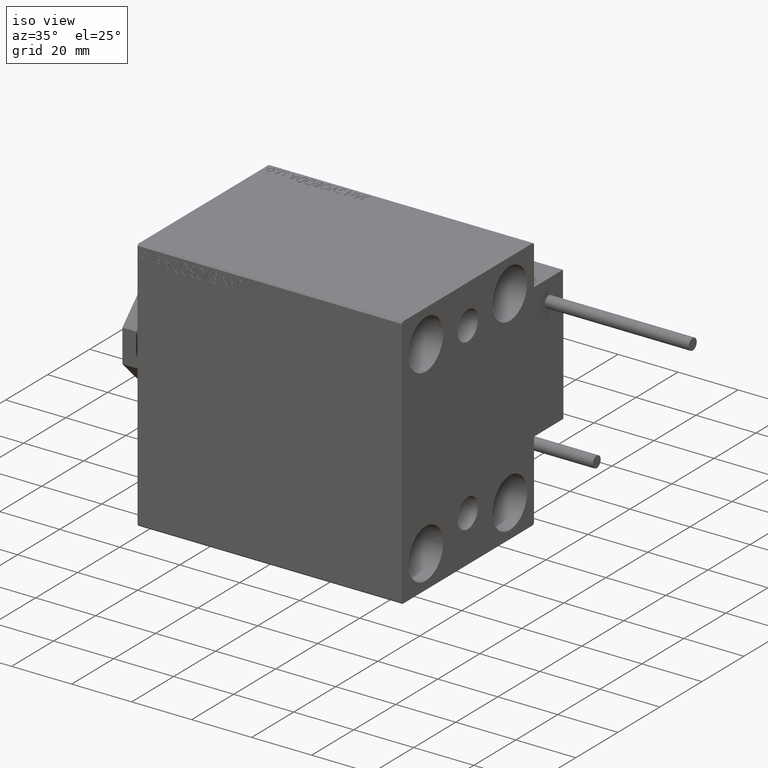
[diagram: clean part render]
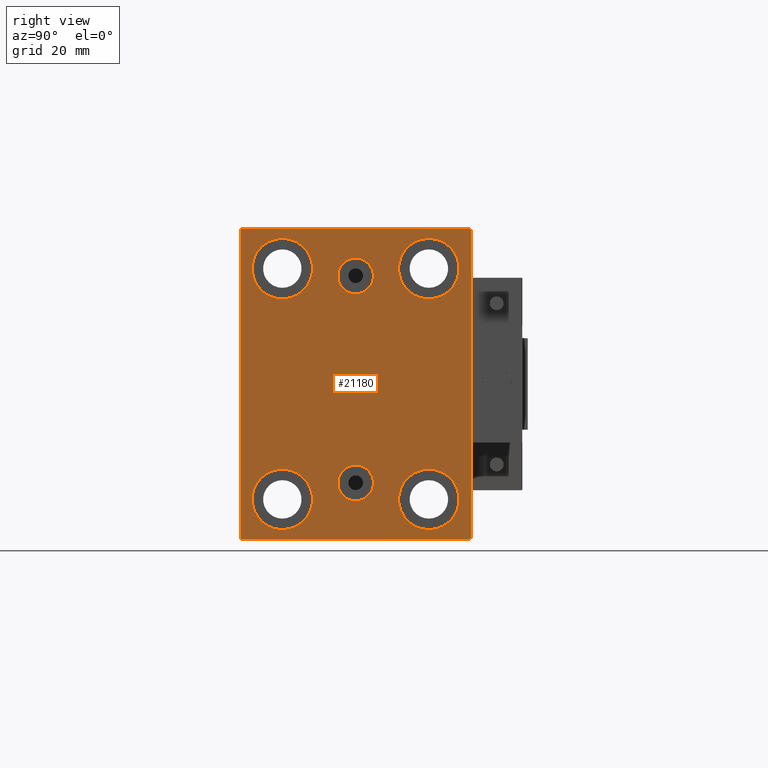
[diagram: tour spotlight — one face highlighted and labeled with its STEP entity id]
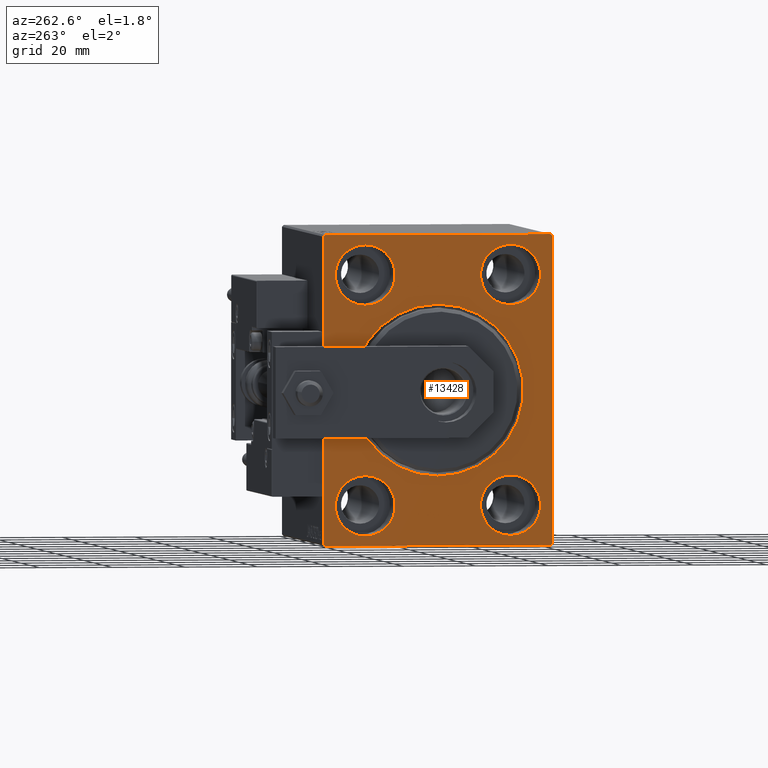
[diagram: tour spotlight — one face highlighted and labeled with its STEP entity id]
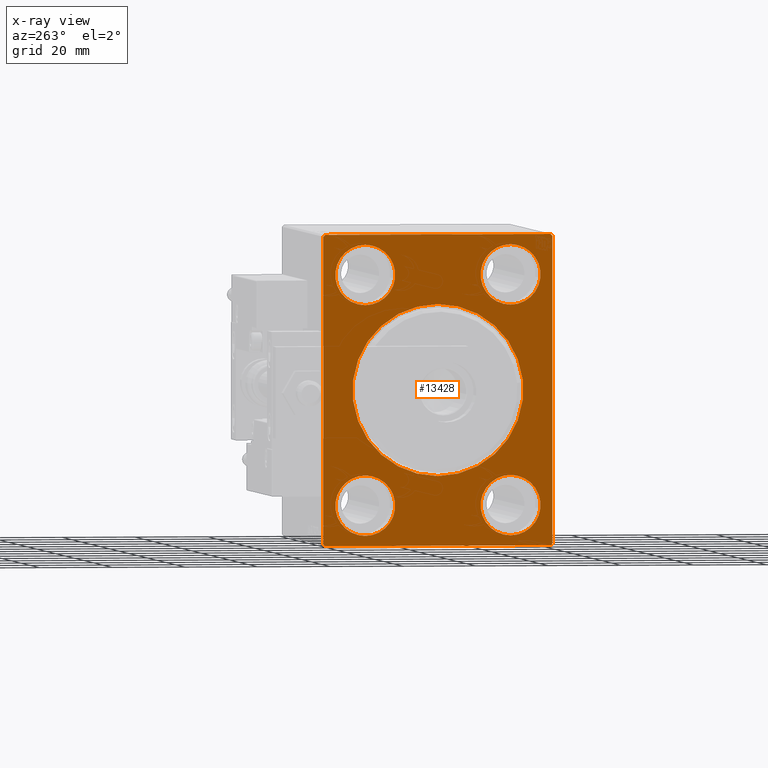
[diagram: x-ray of the same camera — body ghosted, this tour face saturated]
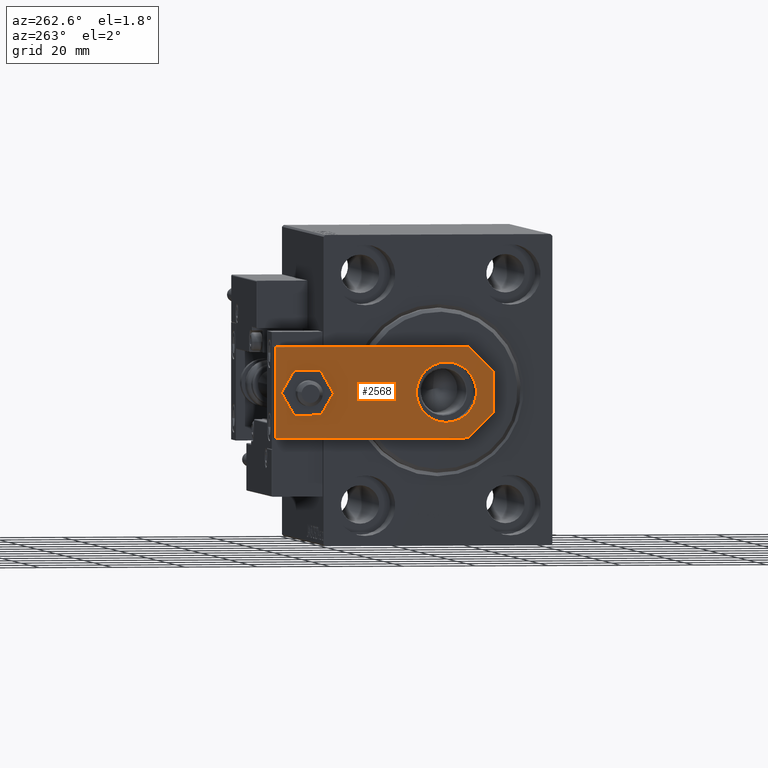
[diagram: tour spotlight — one face highlighted and labeled with its STEP entity id]
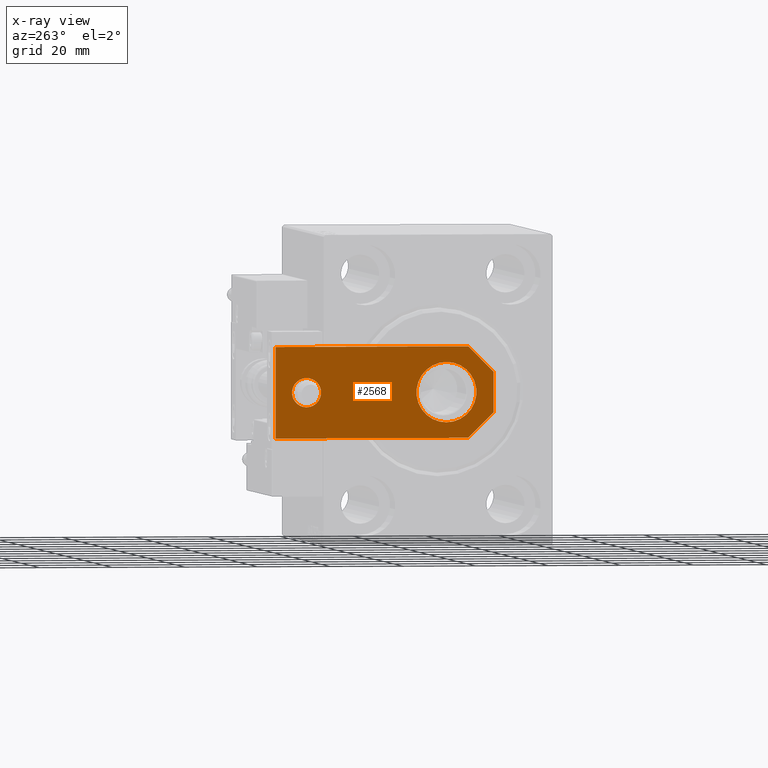
[diagram: x-ray of the same camera — body ghosted, this tour face saturated]
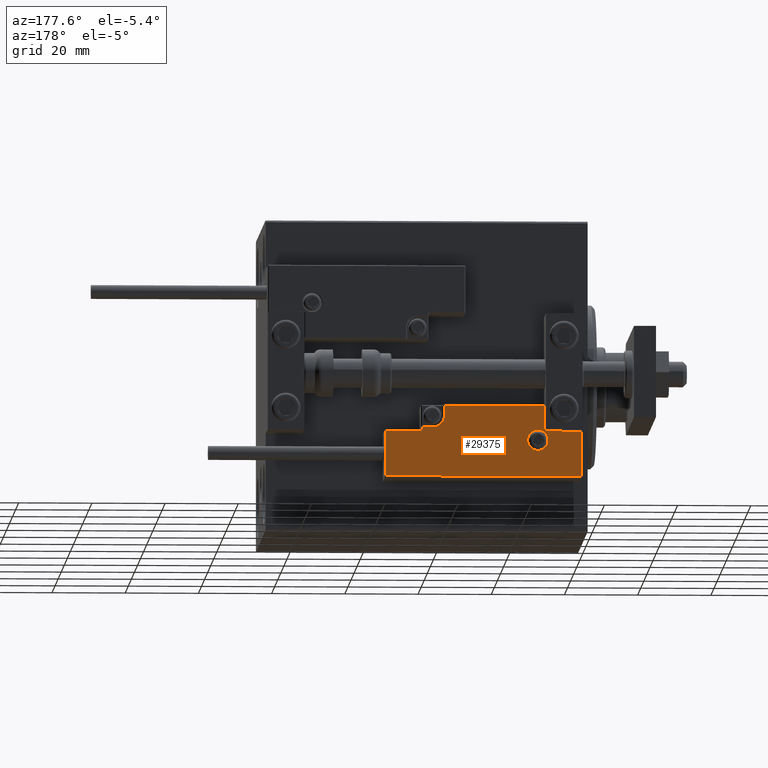
[diagram: tour spotlight — one face highlighted and labeled with its STEP entity id]
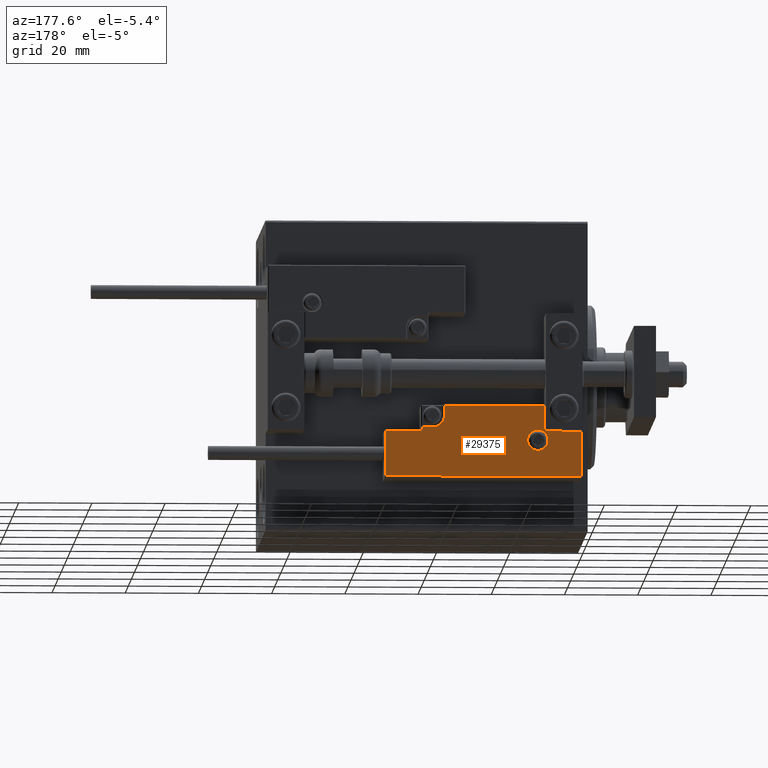
[diagram: tour spotlight — one face highlighted and labeled with its STEP entity id]
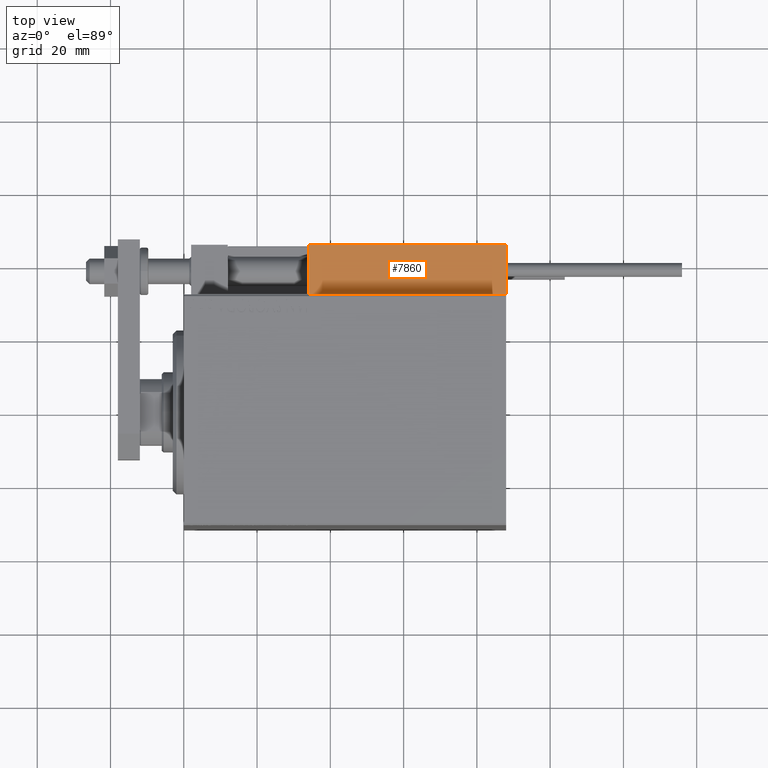
[diagram: tour spotlight — one face highlighted and labeled with its STEP entity id]
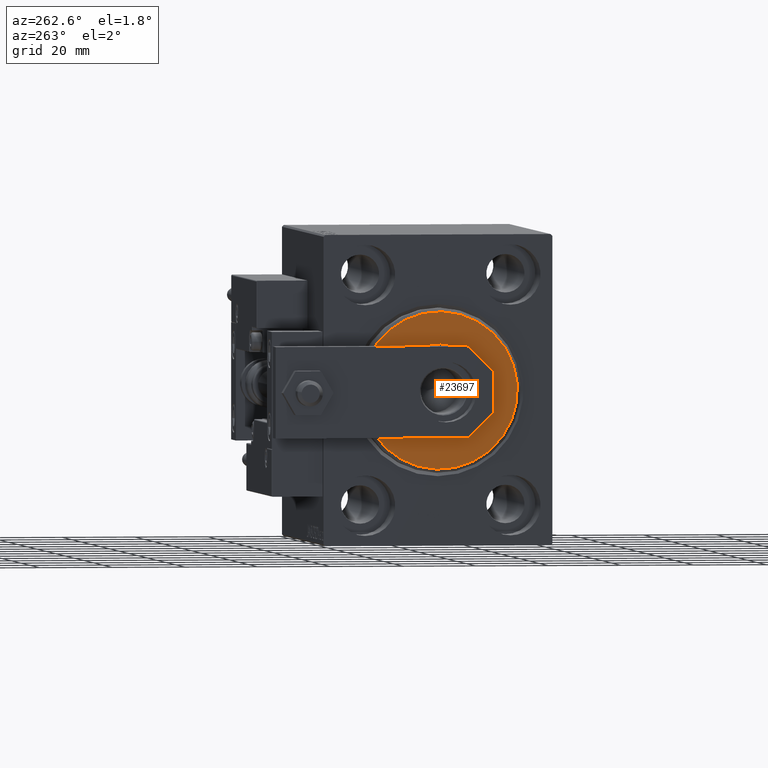
[diagram: tour spotlight — one face highlighted and labeled with its STEP entity id]
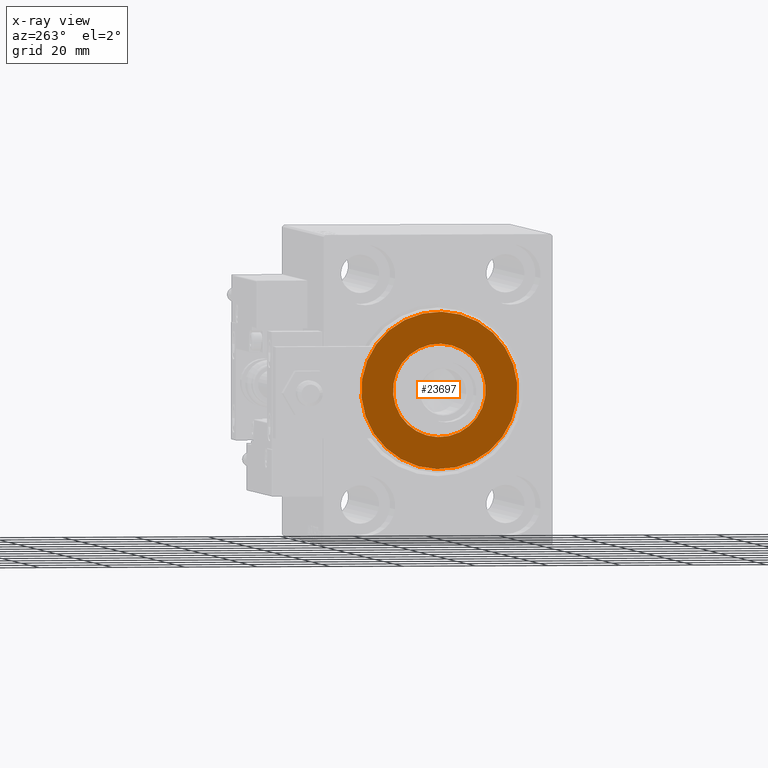
[diagram: x-ray of the same camera — body ghosted, this tour face saturated]
A machine part: a face-by-face anatomy tour. The part has 1278 B-rep faces; the first image is the clean iso view, then the 7 largest visible faces are spotlighted one at a time (largest first), each with its STEP entity span.

Face 1 — right view, entity #21180. In plain terms, the highlighted planar face has unit normal (1, 0, 0).
Definition (entity closure, byte-faithful):
#27 = VERTEX_POINT ( 'NONE', #38774 ) ;
#713 = DIRECTION ( 'NONE',  ( 0.000000000000000000, 0.000000000000000000, 1.000000000000000000 ) ) ;
#1031 = DIRECTION ( 'NONE',  ( 0.000000000000000000, -0.7071067811865378028, -0.7071067811865573427 ) ) ;
#1169 = EDGE_CURVE ( 'NONE', #14251, #4705, #28641, .T. ) ;
#1322 = CARTESIAN_POINT ( 'NONE',  ( 88.00000000000000000, 3.306546357697852550E-15, -26.99999999999998934 ) ) ;
#1384 = CIRCLE ( 'NONE', #24028, 4.859999999999999432 ) ;
#1388 = VERTEX_POINT ( 'NONE', #44609 ) ;
#1454 = CARTESIAN_POINT ( 'NONE',  ( 88.00000000000000000, -19.99999999999999645, 23.25000000000000355 ) ) ;
#1814 = DIRECTION ( 'NONE',  ( 0.000000000000000000, 1.000000000000000000, 0.000000000000000000 ) ) ;
#2304 = CARTESIAN_POINT ( 'NONE',  ( 88.00000000000000000, -19.99999999999999645, 39.74999999999999289 ) ) ;
#2382 = CARTESIAN_POINT ( 'NONE',  ( 88.00000000000000000, 19.99999999999999645, -23.24999999999999289 ) ) ;
#2505 = EDGE_CURVE ( 'NONE', #17907, #5685, #20272, .T. ) ;
#2880 = DIRECTION ( 'NONE',  ( -0.000000000000000000, 0.7071067811865378028, 0.7071067811865573427 ) ) ;
#2902 = ORIENTED_EDGE ( 'NONE', *, *, #43526, .T. ) ;
#3725 = CARTESIAN_POINT ( 'NONE',  ( 88.00000000000000000, 3.901724702083465828E-15, -22.13999999999999346 ) ) ;
#4019 = CARTESIAN_POINT ( 'NONE',  ( 88.00000000000000000, 31.00000000000002842, -42.50000000000000711 ) ) ;
#4568 = DIRECTION ( 'NONE',  ( 0.000000000000000000, 0.000000000000000000, -1.000000000000000000 ) ) ;
#4606 = DIRECTION ( 'NONE',  ( 0.000000000000000000, 0.000000000000000000, -1.000000000000000000 ) ) ;
#4644 = DIRECTION ( 'NONE',  ( -1.000000000000000000, -0.000000000000000000, -0.000000000000000000 ) ) ;
#4705 = VERTEX_POINT ( 'NONE', #35746 ) ;
#5258 = VERTEX_POINT ( 'NONE', #2382 ) ;
#5522 = ORIENTED_EDGE ( 'NONE', *, *, #6216, .T. ) ;
#5618 = ORIENTED_EDGE ( 'NONE', *, *, #20544, .T. ) ;
#5637 = CARTESIAN_POINT ( 'NONE',  ( 88.00000000000000000, 3.306546357697852550E-15, -26.99999999999998934 ) ) ;
#5685 = VERTEX_POINT ( 'NONE', #27607 ) ;
#6216 = EDGE_CURVE ( 'NONE', #14511, #8829, #10800, .T. ) ;
#6236 = CIRCLE ( 'NONE', #23230, 8.250000000000000000 ) ;
#6728 = EDGE_CURVE ( 'NONE', #10743, #24452, #17757, .T. ) ;
#6778 = CARTESIAN_POINT ( 'NONE',  ( 88.00000000000000000, -20.00000000000000355, -31.49999999999999289 ) ) ;
#6822 = FACE_BOUND ( 'NONE', #22887, .T. ) ;
#7221 = CARTESIAN_POINT ( 'NONE',  ( 88.00000000000000000, 3.306546357697852550E-15, -31.85999999999998522 ) ) ;
#7903 = AXIS2_PLACEMENT_3D ( 'NONE', #23857, #23368, #4606 ) ;
#7945 = ORIENTED_EDGE ( 'NONE', *, *, #42403, .F. ) ;
#8372 = DIRECTION ( 'NONE',  ( 1.000000000000000000, 0.000000000000000000, 0.000000000000000000 ) ) ;
#8515 = ORIENTED_EDGE ( 'NONE', *, *, #25042, .T. ) ;
#8687 = DIRECTION ( 'NONE',  ( 0.000000000000000000, 0.000000000000000000, 1.000000000000000000 ) ) ;
#8829 = VERTEX_POINT ( 'NONE', #44370 ) ;
#9139 = AXIS2_PLACEMENT_3D ( 'NONE', #11859, #23268, #19216 ) ;
#9210 = DIRECTION ( 'NONE',  ( 0.000000000000000000, -1.000000000000000000, -2.202823461557850341E-16 ) ) ;
#9307 = CARTESIAN_POINT ( 'NONE',  ( 88.00000000000000000, 19.99999999999999645, -31.49999999999999289 ) ) ;
#9445 = VERTEX_POINT ( 'NONE', #2304 ) ;
#9569 = ORIENTED_EDGE ( 'NONE', *, *, #40456, .T. ) ;
#10553 = LINE ( 'NONE', #29296, #11558 ) ;
#10743 = VERTEX_POINT ( 'NONE', #17877 ) ;
#10800 = LINE ( 'NONE', #26255, #46580 ) ;
#11442 = CARTESIAN_POINT ( 'NONE',  ( 88.00000000000000000, -19.99999999999999645, 31.50000000000000000 ) ) ;
#11558 = VECTOR ( 'NONE', #17639, 1000.000000000000114 ) ;
#11859 = CARTESIAN_POINT ( 'NONE',  ( 88.00000000000000000, 0.000000000000000000, 0.000000000000000000 ) ) ;
#12225 = DIRECTION ( 'NONE',  ( 1.000000000000000000, 0.000000000000000000, -0.000000000000000000 ) ) ;
#12352 = DIRECTION ( 'NONE',  ( -1.000000000000000000, -0.000000000000000000, -0.000000000000000000 ) ) ;
#12360 = EDGE_LOOP ( 'NONE', ( #2902, #16482 ) ) ;
#12811 = DIRECTION ( 'NONE',  ( -1.000000000000000000, -0.000000000000000000, -0.000000000000000000 ) ) ;
#13491 = DIRECTION ( 'NONE',  ( 1.000000000000000000, 0.000000000000000000, -0.000000000000000000 ) ) ;
#13508 = CIRCLE ( 'NONE', #32078, 8.249999999999992895 ) ;
#13538 = CIRCLE ( 'NONE', #49947, 8.250000000000000000 ) ;
#13893 = DIRECTION ( 'NONE',  ( 0.000000000000000000, 0.000000000000000000, 1.000000000000000000 ) ) ;
#14251 = VERTEX_POINT ( 'NONE', #34649 ) ;
#14511 = VERTEX_POINT ( 'NONE', #49785 ) ;
#15101 = DIRECTION ( 'NONE',  ( 0.000000000000000000, -1.632680918566406300E-16, 1.000000000000000000 ) ) ;
#15499 = AXIS2_PLACEMENT_3D ( 'NONE', #5637, #13491, #28940 ) ;
#15756 = VECTOR ( 'NONE', #1814, 1000.000000000000000 ) ;
#16063 = EDGE_LOOP ( 'NONE', ( #46623, #32986 ) ) ;
#16458 = EDGE_LOOP ( 'NONE', ( #7945, #34618 ) ) ;
#16482 = ORIENTED_EDGE ( 'NONE', *, *, #34853, .T. ) ;
#16918 = CARTESIAN_POINT ( 'NONE',  ( 88.00000000000000000, -31.50000000000000000, 42.49999999999999289 ) ) ;
#17266 = ORIENTED_EDGE ( 'NONE', *, *, #2505, .T. ) ;
#17639 = DIRECTION ( 'NONE',  ( -0.000000000000000000, -0.7071067811865474617, 0.7071067811865474617 ) ) ;
#17640 = DIRECTION ( 'NONE',  ( -0.000000000000000000, 0.7071067811865573427, -0.7071067811865378028 ) ) ;
#17757 = LINE ( 'NONE', #29667, #15756 ) ;
#17877 = CARTESIAN_POINT ( 'NONE',  ( 88.00000000000000000, -31.00000000000000000, -42.50000000000000711 ) ) ;
#17907 = VERTEX_POINT ( 'NONE', #35829 ) ;
#17960 = CARTESIAN_POINT ( 'NONE',  ( 88.00000000000000000, -20.00000000000000355, -39.74999999999999289 ) ) ;
#18179 = CARTESIAN_POINT ( 'NONE',  ( 88.00000000000000000, 30.99999999999998579, 42.50000000000000711 ) ) ;
#18269 = EDGE_CURVE ( 'NONE', #37563, #36906, #37332, .T. ) ;
#18469 = FACE_BOUND ( 'NONE', #12360, .T. ) ;
#18610 = AXIS2_PLACEMENT_3D ( 'NONE', #1322, #12225, #40057 ) ;
#19216 = DIRECTION ( 'NONE',  ( 0.000000000000000000, 0.000000000000000000, -1.000000000000000000 ) ) ;
#19291 = DIRECTION ( 'NONE',  ( -1.000000000000000000, -0.000000000000000000, -0.000000000000000000 ) ) ;
#19888 = VERTEX_POINT ( 'NONE', #18179 ) ;
#20073 = CARTESIAN_POINT ( 'NONE',  ( 88.00000000000000000, 20.00000000000000355, 31.50000000000000000 ) ) ;
#20272 = LINE ( 'NONE', #35717, #20607 ) ;
#20544 = EDGE_CURVE ( 'NONE', #8829, #19888, #10553, .T. ) ;
#20607 = VECTOR ( 'NONE', #1031, 1000.000000000000000 ) ;
#20829 = DIRECTION ( 'NONE',  ( -1.000000000000000000, -0.000000000000000000, -0.000000000000000000 ) ) ;
#20881 = VERTEX_POINT ( 'NONE', #35705 ) ;
#21089 = CARTESIAN_POINT ( 'NONE',  ( 88.00000000000000000, -20.00000000000000355, -23.24999999999999289 ) ) ;
#21100 = VERTEX_POINT ( 'NONE', #17960 ) ;
#21180 = ADVANCED_FACE ( 'NONE', ( #26085, #49113, #42024, #41508, #6822, #18469, #45548 ), #31107, .T. ) ;
#22503 = VECTOR ( 'NONE', #2880, 1000.000000000000000 ) ;
#22642 = EDGE_LOOP ( 'NONE', ( #42814, #17266, #43287, #34062, #49594, #9569, #5522, #5618 ) ) ;
#22887 = EDGE_LOOP ( 'NONE', ( #28320, #39797 ) ) ;
#23230 = AXIS2_PLACEMENT_3D ( 'NONE', #9307, #12352, #713 ) ;
#23268 = DIRECTION ( 'NONE',  ( 1.000000000000000000, 0.000000000000000000, 0.000000000000000000 ) ) ;
#23298 = VECTOR ( 'NONE', #17640, 1000.000000000000000 ) ;
#23368 = DIRECTION ( 'NONE',  ( 1.000000000000000000, 0.000000000000000000, 0.000000000000000000 ) ) ;
#23577 = DIRECTION ( 'NONE',  ( -1.000000000000000000, -0.000000000000000000, -0.000000000000000000 ) ) ;
#23846 = AXIS2_PLACEMENT_3D ( 'NONE', #11442, #19291, #45616 ) ;
#23857 = CARTESIAN_POINT ( 'NONE',  ( 88.00000000000000000, -3.571693674697836683E-15, 29.50000000000001066 ) ) ;
#24028 = AXIS2_PLACEMENT_3D ( 'NONE', #40693, #8372, #4568 ) ;
#24096 = AXIS2_PLACEMENT_3D ( 'NONE', #34380, #49833, #27036 ) ;
#24452 = VERTEX_POINT ( 'NONE', #4019 ) ;
#24917 = CARTESIAN_POINT ( 'NONE',  ( 88.00000000000000000, 31.50000000000000000, 42.50000000000000711 ) ) ;
#25042 = EDGE_CURVE ( 'NONE', #32555, #9445, #34373, .T. ) ;
#25509 = CARTESIAN_POINT ( 'NONE',  ( 88.00000000000000000, -36.74999999999958078, -36.75000000000059686 ) ) ;
#25667 = CIRCLE ( 'NONE', #36164, 8.250000000000000000 ) ;
#26085 = FACE_BOUND ( 'NONE', #30373, .T. ) ;
#26255 = CARTESIAN_POINT ( 'NONE',  ( 88.00000000000000000, 31.50000000000001421, -42.50000000000000711 ) ) ;
#27036 = DIRECTION ( 'NONE',  ( 0.000000000000000000, 0.000000000000000000, 1.000000000000000000 ) ) ;
#27607 = CARTESIAN_POINT ( 'NONE',  ( 88.00000000000000000, -31.50000000000000000, 41.99999999999999289 ) ) ;
#28013 = CARTESIAN_POINT ( 'NONE',  ( 88.00000000000000000, 20.00000000000000355, 31.50000000000000000 ) ) ;
#28084 = VECTOR ( 'NONE', #9210, 1000.000000000000000 ) ;
#28320 = ORIENTED_EDGE ( 'NONE', *, *, #1169, .T. ) ;
#28641 = CIRCLE ( 'NONE', #46405, 8.249999999999992895 ) ;
#28940 = DIRECTION ( 'NONE',  ( 0.000000000000000000, 0.000000000000000000, 1.000000000000000000 ) ) ;
#29296 = CARTESIAN_POINT ( 'NONE',  ( 88.00000000000000000, 36.74999999999999289, 36.74999999999999289 ) ) ;
#29667 = CARTESIAN_POINT ( 'NONE',  ( 88.00000000000000000, -31.50000000000000000, -42.50000000000000711 ) ) ;
#29736 = CIRCLE ( 'NONE', #7903, 4.859999999999999432 ) ;
#30373 = EDGE_LOOP ( 'NONE', ( #48508, #48222 ) ) ;
#31107 = PLANE ( 'NONE',  #9139 ) ;
#31617 = LINE ( 'NONE', #16918, #37864 ) ;
#32078 = AXIS2_PLACEMENT_3D ( 'NONE', #28013, #12811, #47491 ) ;
#32501 = LINE ( 'NONE', #24917, #28084 ) ;
#32555 = VERTEX_POINT ( 'NONE', #1454 ) ;
#32626 = CARTESIAN_POINT ( 'NONE',  ( 88.00000000000000000, -19.99999999999999645, 31.50000000000000000 ) ) ;
#32986 = ORIENTED_EDGE ( 'NONE', *, *, #39115, .T. ) ;
#32998 = CIRCLE ( 'NONE', #40238, 8.249999999999992895 ) ;
#33424 = EDGE_CURVE ( 'NONE', #20881, #27, #1384, .T. ) ;
#33784 = CIRCLE ( 'NONE', #24096, 8.250000000000000000 ) ;
#34033 = VERTEX_POINT ( 'NONE', #21089 ) ;
#34062 = ORIENTED_EDGE ( 'NONE', *, *, #35684, .T. ) ;
#34228 = DIRECTION ( 'NONE',  ( 0.000000000000000000, 0.000000000000000000, 1.000000000000000000 ) ) ;
#34373 = CIRCLE ( 'NONE', #23846, 8.249999999999992895 ) ;
#34380 = CARTESIAN_POINT ( 'NONE',  ( 88.00000000000000000, 19.99999999999999645, -31.49999999999999289 ) ) ;
#34618 = ORIENTED_EDGE ( 'NONE', *, *, #18269, .F. ) ;
#34649 = CARTESIAN_POINT ( 'NONE',  ( 88.00000000000000000, 20.00000000000000355, 23.25000000000000355 ) ) ;
#34853 = EDGE_CURVE ( 'NONE', #34033, #21100, #13538, .T. ) ;
#35536 = DIRECTION ( 'NONE',  ( 0.000000000000000000, 0.000000000000000000, 1.000000000000000000 ) ) ;
#35684 = EDGE_CURVE ( 'NONE', #1388, #10743, #40938, .T. ) ;
#35705 = CARTESIAN_POINT ( 'NONE',  ( 88.00000000000000000, -3.571693674697836683E-15, 24.64000000000001123 ) ) ;
#35717 = CARTESIAN_POINT ( 'NONE',  ( 88.00000000000000000, -36.75000000000044054, 36.74999999999942446 ) ) ;
#35746 = CARTESIAN_POINT ( 'NONE',  ( 88.00000000000000000, 20.00000000000000355, 39.74999999999999289 ) ) ;
#35829 = CARTESIAN_POINT ( 'NONE',  ( 88.00000000000000000, -31.00000000000001421, 42.49999999999999289 ) ) ;
#36164 = AXIS2_PLACEMENT_3D ( 'NONE', #42320, #23577, #34228 ) ;
#36906 = VERTEX_POINT ( 'NONE', #7221 ) ;
#37332 = CIRCLE ( 'NONE', #15499, 4.859999999999995879 ) ;
#37425 = EDGE_CURVE ( 'NONE', #5685, #1388, #31617, .T. ) ;
#37563 = VERTEX_POINT ( 'NONE', #3725 ) ;
#37813 = CARTESIAN_POINT ( 'NONE',  ( 88.00000000000000000, 36.75000000000045475, -36.74999999999943867 ) ) ;
#37864 = VECTOR ( 'NONE', #43249, 1000.000000000000000 ) ;
#38065 = LINE ( 'NONE', #37813, #22503 ) ;
#38774 = CARTESIAN_POINT ( 'NONE',  ( 88.00000000000000000, -2.976515330312223011E-15, 34.36000000000000654 ) ) ;
#39115 = EDGE_CURVE ( 'NONE', #5258, #41789, #33784, .T. ) ;
#39719 = EDGE_CURVE ( 'NONE', #27, #20881, #29736, .T. ) ;
#39797 = ORIENTED_EDGE ( 'NONE', *, *, #45140, .T. ) ;
#40057 = DIRECTION ( 'NONE',  ( 0.000000000000000000, 0.000000000000000000, 1.000000000000000000 ) ) ;
#40238 = AXIS2_PLACEMENT_3D ( 'NONE', #32626, #40475, #13893 ) ;
#40436 = CIRCLE ( 'NONE', #18610, 4.859999999999995879 ) ;
#40456 = EDGE_CURVE ( 'NONE', #24452, #14511, #38065, .T. ) ;
#40475 = DIRECTION ( 'NONE',  ( -1.000000000000000000, -0.000000000000000000, -0.000000000000000000 ) ) ;
#40693 = CARTESIAN_POINT ( 'NONE',  ( 88.00000000000000000, -3.571693674697836683E-15, 29.50000000000001066 ) ) ;
#40938 = LINE ( 'NONE', #25509, #23298 ) ;
#41383 = EDGE_LOOP ( 'NONE', ( #8515, #49369 ) ) ;
#41508 = FACE_BOUND ( 'NONE', #41383, .T. ) ;
#41789 = VERTEX_POINT ( 'NONE', #49349 ) ;
#42024 = FACE_BOUND ( 'NONE', #16063, .T. ) ;
#42320 = CARTESIAN_POINT ( 'NONE',  ( 88.00000000000000000, -20.00000000000000355, -31.49999999999999289 ) ) ;
#42403 = EDGE_CURVE ( 'NONE', #36906, #37563, #40436, .T. ) ;
#42814 = ORIENTED_EDGE ( 'NONE', *, *, #46172, .T. ) ;
#43249 = DIRECTION ( 'NONE',  ( 0.000000000000000000, 0.000000000000000000, -1.000000000000000000 ) ) ;
#43287 = ORIENTED_EDGE ( 'NONE', *, *, #37425, .T. ) ;
#43526 = EDGE_CURVE ( 'NONE', #21100, #34033, #25667, .T. ) ;
#43869 = EDGE_CURVE ( 'NONE', #41789, #5258, #6236, .T. ) ;
#44370 = CARTESIAN_POINT ( 'NONE',  ( 88.00000000000000000, 31.50000000000000000, 41.99999999999999289 ) ) ;
#44609 = CARTESIAN_POINT ( 'NONE',  ( 88.00000000000000000, -31.50000000000000000, -42.00000000000002132 ) ) ;
#45140 = EDGE_CURVE ( 'NONE', #4705, #14251, #13508, .T. ) ;
#45548 = FACE_OUTER_BOUND ( 'NONE', #22642, .T. ) ;
#45616 = DIRECTION ( 'NONE',  ( 0.000000000000000000, 0.000000000000000000, 1.000000000000000000 ) ) ;
#46172 = EDGE_CURVE ( 'NONE', #19888, #17907, #32501, .T. ) ;
#46405 = AXIS2_PLACEMENT_3D ( 'NONE', #20073, #20829, #8687 ) ;
#46580 = VECTOR ( 'NONE', #15101, 1000.000000000000000 ) ;
#46623 = ORIENTED_EDGE ( 'NONE', *, *, #43869, .T. ) ;
#47186 = EDGE_CURVE ( 'NONE', #9445, #32555, #32998, .T. ) ;
#47491 = DIRECTION ( 'NONE',  ( 0.000000000000000000, 0.000000000000000000, 1.000000000000000000 ) ) ;
#48222 = ORIENTED_EDGE ( 'NONE', *, *, #39719, .F. ) ;
#48508 = ORIENTED_EDGE ( 'NONE', *, *, #33424, .F. ) ;
#49113 = FACE_BOUND ( 'NONE', #16458, .T. ) ;
#49349 = CARTESIAN_POINT ( 'NONE',  ( 88.00000000000000000, 19.99999999999999645, -39.74999999999999289 ) ) ;
#49369 = ORIENTED_EDGE ( 'NONE', *, *, #47186, .T. ) ;
#49594 = ORIENTED_EDGE ( 'NONE', *, *, #6728, .T. ) ;
#49785 = CARTESIAN_POINT ( 'NONE',  ( 88.00000000000000000, 31.50000000000001421, -42.00000000000000711 ) ) ;
#49833 = DIRECTION ( 'NONE',  ( -1.000000000000000000, -0.000000000000000000, -0.000000000000000000 ) ) ;
#49947 = AXIS2_PLACEMENT_3D ( 'NONE', #6778, #4644, #35536 ) ;

Face 2 — auxiliary view, entity #13428. An x-ray twin of the same camera follows (body ghosted, this face saturated) — the face is partly hidden behind the body. In plain terms, the highlighted planar face has unit normal (1, 0, 0).
Definition (entity closure, byte-faithful):
#981 = CARTESIAN_POINT ( 'NONE',  ( 0.000000000000000000, 19.99999999999999645, -31.49999999999999289 ) ) ;
#1283 = EDGE_CURVE ( 'NONE', #16160, #33563, #32223, .T. ) ;
#2074 = ORIENTED_EDGE ( 'NONE', *, *, #18337, .F. ) ;
#2158 = ORIENTED_EDGE ( 'NONE', *, *, #27948, .T. ) ;
#2642 = ORIENTED_EDGE ( 'NONE', *, *, #34915, .F. ) ;
#2655 = LINE ( 'NONE', #18095, #7863 ) ;
#2768 = CARTESIAN_POINT ( 'NONE',  ( 0.000000000000000000, -31.50000000000000000, -42.50000000000000711 ) ) ;
#2778 = VECTOR ( 'NONE', #43556, 1000.000000000000114 ) ;
#2832 = EDGE_CURVE ( 'NONE', #28503, #8643, #18989, .T. ) ;
#3278 = DIRECTION ( 'NONE',  ( 0.000000000000000000, 1.000000000000000000, 0.000000000000000000 ) ) ;
#3802 = DIRECTION ( 'NONE',  ( 0.000000000000000000, 0.000000000000000000, 1.000000000000000000 ) ) ;
#4049 = DIRECTION ( 'NONE',  ( 0.000000000000000000, -1.632680918566406300E-16, 1.000000000000000000 ) ) ;
#4158 = ORIENTED_EDGE ( 'NONE', *, *, #33891, .T. ) ;
#4630 = CARTESIAN_POINT ( 'NONE',  ( 0.000000000000000000, -20.00000000000000355, -39.74999999999999289 ) ) ;
#4905 = EDGE_LOOP ( 'NONE', ( #20579, #25144 ) ) ;
#5524 = DIRECTION ( 'NONE',  ( 0.000000000000000000, 0.000000000000000000, 1.000000000000000000 ) ) ;
#5605 = CARTESIAN_POINT ( 'NONE',  ( 0.000000000000000000, 31.00000000000002842, -42.50000000000000711 ) ) ;
#6045 = CIRCLE ( 'NONE', #48083, 8.250000000000000000 ) ;
#6670 = CARTESIAN_POINT ( 'NONE',  ( 0.000000000000000000, 31.50000000000001421, -42.00000000000000711 ) ) ;
#6956 = DIRECTION ( 'NONE',  ( 0.000000000000000000, -0.7071067811865378028, -0.7071067811865573427 ) ) ;
#7101 = AXIS2_PLACEMENT_3D ( 'NONE', #32580, #21682, #37122 ) ;
#7607 = CARTESIAN_POINT ( 'NONE',  ( 0.000000000000000000, 19.99999999999999645, -31.49999999999999289 ) ) ;
#7863 = VECTOR ( 'NONE', #6956, 1000.000000000000000 ) ;
#8434 = VERTEX_POINT ( 'NONE', #13044 ) ;
#8621 = AXIS2_PLACEMENT_3D ( 'NONE', #35081, #11785, #42427 ) ;
#8643 = VERTEX_POINT ( 'NONE', #4630 ) ;
#9577 = VERTEX_POINT ( 'NONE', #28093 ) ;
#9630 = VERTEX_POINT ( 'NONE', #43020 ) ;
#9823 = VERTEX_POINT ( 'NONE', #10475 ) ;
#9836 = AXIS2_PLACEMENT_3D ( 'NONE', #19152, #11551, #31790 ) ;
#10125 = ORIENTED_EDGE ( 'NONE', *, *, #24462, .F. ) ;
#10438 = AXIS2_PLACEMENT_3D ( 'NONE', #12846, #39169, #32083 ) ;
#10475 = CARTESIAN_POINT ( 'NONE',  ( 0.000000000000000000, 19.99999999999999645, -39.74999999999999289 ) ) ;
#11161 = DIRECTION ( 'NONE',  ( -1.000000000000000000, 0.000000000000000000, 0.000000000000000000 ) ) ;
#11551 = DIRECTION ( 'NONE',  ( -1.000000000000000000, 0.000000000000000000, 0.000000000000000000 ) ) ;
#11785 = DIRECTION ( 'NONE',  ( -1.000000000000000000, 0.000000000000000000, 0.000000000000000000 ) ) ;
#11838 = VERTEX_POINT ( 'NONE', #34932 ) ;
#12492 = CIRCLE ( 'NONE', #15704, 8.249999999999992895 ) ;
#12846 = CARTESIAN_POINT ( 'NONE',  ( 0.000000000000000000, -19.99999999999999645, 31.50000000000000000 ) ) ;
#13044 = CARTESIAN_POINT ( 'NONE',  ( 0.000000000000000000, 2.877919977996279137E-15, -23.49999999999998934 ) ) ;
#13329 = FACE_OUTER_BOUND ( 'NONE', #48756, .T. ) ;
#13428 = ADVANCED_FACE ( 'NONE', ( #44466, #44209, #18126, #21430, #25745, #13329 ), #25490, .F. ) ;
#13947 = VERTEX_POINT ( 'NONE', #31218 ) ;
#14153 = AXIS2_PLACEMENT_3D ( 'NONE', #26243, #36786, #28703 ) ;
#14344 = EDGE_CURVE ( 'NONE', #9577, #13947, #32264, .T. ) ;
#14633 = DIRECTION ( 'NONE',  ( 0.000000000000000000, 0.000000000000000000, 1.000000000000000000 ) ) ;
#14709 = CARTESIAN_POINT ( 'NONE',  ( 0.000000000000000000, -20.00000000000000355, -23.24999999999999289 ) ) ;
#14885 = LINE ( 'NONE', #45766, #47211 ) ;
#15494 = ORIENTED_EDGE ( 'NONE', *, *, #14344, .F. ) ;
#15704 = AXIS2_PLACEMENT_3D ( 'NONE', #39196, #31111, #34670 ) ;
#16056 = CARTESIAN_POINT ( 'NONE',  ( 0.000000000000000000, 20.00000000000000355, 31.50000000000000000 ) ) ;
#16160 = VERTEX_POINT ( 'NONE', #43839 ) ;
#16657 = LINE ( 'NONE', #47555, #44098 ) ;
#17150 = VECTOR ( 'NONE', #25902, 1000.000000000000000 ) ;
#17490 = CARTESIAN_POINT ( 'NONE',  ( 0.000000000000000000, -31.50000000000000000, -42.00000000000002132 ) ) ;
#17796 = EDGE_CURVE ( 'NONE', #11838, #23038, #31649, .T. ) ;
#18095 = CARTESIAN_POINT ( 'NONE',  ( 0.000000000000000000, 31.50000000000001421, -42.00000000000000711 ) ) ;
#18126 = FACE_BOUND ( 'NONE', #27440, .T. ) ;
#18337 = EDGE_CURVE ( 'NONE', #9630, #47879, #44867, .T. ) ;
#18899 = CARTESIAN_POINT ( 'NONE',  ( 0.000000000000000000, -31.00000000000001421, 42.49999999999999289 ) ) ;
#18920 = VECTOR ( 'NONE', #29934, 1000.000000000000000 ) ;
#18989 = CIRCLE ( 'NONE', #40808, 8.250000000000000000 ) ;
#19064 = ORIENTED_EDGE ( 'NONE', *, *, #24183, .T. ) ;
#19152 = CARTESIAN_POINT ( 'NONE',  ( 0.000000000000000000, 20.00000000000000355, 31.50000000000000000 ) ) ;
#19295 = VECTOR ( 'NONE', #4049, 1000.000000000000000 ) ;
#20579 = ORIENTED_EDGE ( 'NONE', *, *, #2832, .F. ) ;
#20595 = VERTEX_POINT ( 'NONE', #44728 ) ;
#21430 = FACE_BOUND ( 'NONE', #42520, .T. ) ;
#21574 = CARTESIAN_POINT ( 'NONE',  ( 0.000000000000000000, 31.50000000000000000, 42.50000000000000711 ) ) ;
#21682 = DIRECTION ( 'NONE',  ( 1.000000000000000000, 0.000000000000000000, 0.000000000000000000 ) ) ;
#22427 = AXIS2_PLACEMENT_3D ( 'NONE', #16056, #35040, #14633 ) ;
#23038 = VERTEX_POINT ( 'NONE', #44060 ) ;
#23049 = CIRCLE ( 'NONE', #14153, 23.49999999999998934 ) ;
#23465 = ORIENTED_EDGE ( 'NONE', *, *, #31415, .T. ) ;
#23542 = EDGE_CURVE ( 'NONE', #26846, #28424, #37452, .T. ) ;
#24183 = EDGE_CURVE ( 'NONE', #16160, #25221, #39757, .T. ) ;
#24462 = EDGE_CURVE ( 'NONE', #13947, #9577, #12492, .T. ) ;
#24854 = CIRCLE ( 'NONE', #26490, 8.250000000000000000 ) ;
#25144 = ORIENTED_EDGE ( 'NONE', *, *, #32742, .F. ) ;
#25221 = VERTEX_POINT ( 'NONE', #48374 ) ;
#25490 = PLANE ( 'NONE',  #7101 ) ;
#25745 = FACE_BOUND ( 'NONE', #4905, .T. ) ;
#25788 = DIRECTION ( 'NONE',  ( -1.000000000000000000, 0.000000000000000000, 0.000000000000000000 ) ) ;
#25902 = DIRECTION ( 'NONE',  ( 0.000000000000000000, 0.000000000000000000, -1.000000000000000000 ) ) ;
#26243 = CARTESIAN_POINT ( 'NONE',  ( 0.000000000000000000, 0.000000000000000000, 0.000000000000000000 ) ) ;
#26490 = AXIS2_PLACEMENT_3D ( 'NONE', #981, #28573, #28082 ) ;
#26846 = VERTEX_POINT ( 'NONE', #33078 ) ;
#27126 = CARTESIAN_POINT ( 'NONE',  ( 0.000000000000000000, 30.99999999999998579, 42.50000000000000711 ) ) ;
#27225 = CARTESIAN_POINT ( 'NONE',  ( 0.000000000000000000, 0.000000000000000000, 23.49999999999998934 ) ) ;
#27440 = EDGE_LOOP ( 'NONE', ( #15494, #10125 ) ) ;
#27702 = EDGE_CURVE ( 'NONE', #48228, #8434, #48854, .T. ) ;
#27948 = EDGE_CURVE ( 'NONE', #9630, #33563, #14885, .T. ) ;
#28082 = DIRECTION ( 'NONE',  ( 0.000000000000000000, 0.000000000000000000, 1.000000000000000000 ) ) ;
#28093 = CARTESIAN_POINT ( 'NONE',  ( 0.000000000000000000, -19.99999999999999645, 39.74999999999999289 ) ) ;
#28104 = CIRCLE ( 'NONE', #22427, 8.249999999999992895 ) ;
#28120 = ORIENTED_EDGE ( 'NONE', *, *, #29254, .T. ) ;
#28424 = VERTEX_POINT ( 'NONE', #5605 ) ;
#28461 = EDGE_CURVE ( 'NONE', #9823, #20595, #6045, .T. ) ;
#28503 = VERTEX_POINT ( 'NONE', #14709 ) ;
#28573 = DIRECTION ( 'NONE',  ( -1.000000000000000000, 0.000000000000000000, 0.000000000000000000 ) ) ;
#28587 = DIRECTION ( 'NONE',  ( 0.000000000000000000, 0.000000000000000000, -1.000000000000000000 ) ) ;
#28703 = DIRECTION ( 'NONE',  ( 0.000000000000000000, 0.000000000000000000, -1.000000000000000000 ) ) ;
#29254 = EDGE_CURVE ( 'NONE', #8434, #48228, #23049, .T. ) ;
#29759 = EDGE_LOOP ( 'NONE', ( #46841, #28120 ) ) ;
#29934 = DIRECTION ( 'NONE',  ( 0.000000000000000000, -1.000000000000000000, -2.202823461557850341E-16 ) ) ;
#30123 = ORIENTED_EDGE ( 'NONE', *, *, #28461, .F. ) ;
#30465 = CIRCLE ( 'NONE', #8621, 8.250000000000000000 ) ;
#31111 = DIRECTION ( 'NONE',  ( -1.000000000000000000, 0.000000000000000000, 0.000000000000000000 ) ) ;
#31218 = CARTESIAN_POINT ( 'NONE',  ( 0.000000000000000000, -19.99999999999999645, 23.25000000000000355 ) ) ;
#31415 = EDGE_CURVE ( 'NONE', #26846, #47879, #16657, .T. ) ;
#31649 = CIRCLE ( 'NONE', #9836, 8.249999999999992895 ) ;
#31790 = DIRECTION ( 'NONE',  ( 0.000000000000000000, 0.000000000000000000, 1.000000000000000000 ) ) ;
#31800 = ORIENTED_EDGE ( 'NONE', *, *, #1283, .F. ) ;
#32083 = DIRECTION ( 'NONE',  ( 0.000000000000000000, 0.000000000000000000, 1.000000000000000000 ) ) ;
#32223 = LINE ( 'NONE', #21574, #18920 ) ;
#32264 = CIRCLE ( 'NONE', #10438, 8.249999999999992895 ) ;
#32580 = CARTESIAN_POINT ( 'NONE',  ( 0.000000000000000000, 0.000000000000000000, 0.000000000000000000 ) ) ;
#32614 = CARTESIAN_POINT ( 'NONE',  ( 0.000000000000000000, -20.00000000000000355, -31.49999999999999289 ) ) ;
#32742 = EDGE_CURVE ( 'NONE', #8643, #28503, #30465, .T. ) ;
#33078 = CARTESIAN_POINT ( 'NONE',  ( 0.000000000000000000, -31.00000000000000000, -42.50000000000000711 ) ) ;
#33563 = VERTEX_POINT ( 'NONE', #18899 ) ;
#33891 = EDGE_CURVE ( 'NONE', #39642, #28424, #2655, .T. ) ;
#34379 = DIRECTION ( 'NONE',  ( -0.000000000000000000, 0.7071067811865378028, 0.7071067811865573427 ) ) ;
#34420 = ORIENTED_EDGE ( 'NONE', *, *, #50013, .F. ) ;
#34670 = DIRECTION ( 'NONE',  ( 0.000000000000000000, 0.000000000000000000, 1.000000000000000000 ) ) ;
#34684 = EDGE_CURVE ( 'NONE', #20595, #9823, #24854, .T. ) ;
#34742 = ORIENTED_EDGE ( 'NONE', *, *, #34684, .F. ) ;
#34915 = EDGE_CURVE ( 'NONE', #23038, #11838, #28104, .T. ) ;
#34932 = CARTESIAN_POINT ( 'NONE',  ( 0.000000000000000000, 20.00000000000000355, 23.25000000000000355 ) ) ;
#35040 = DIRECTION ( 'NONE',  ( -1.000000000000000000, 0.000000000000000000, 0.000000000000000000 ) ) ;
#35081 = CARTESIAN_POINT ( 'NONE',  ( 0.000000000000000000, -20.00000000000000355, -31.49999999999999289 ) ) ;
#36419 = DIRECTION ( 'NONE',  ( 1.000000000000000000, 0.000000000000000000, 0.000000000000000000 ) ) ;
#36786 = DIRECTION ( 'NONE',  ( 1.000000000000000000, 0.000000000000000000, 0.000000000000000000 ) ) ;
#37122 = DIRECTION ( 'NONE',  ( 0.000000000000000000, 0.000000000000000000, -1.000000000000000000 ) ) ;
#37452 = LINE ( 'NONE', #2768, #37502 ) ;
#37502 = VECTOR ( 'NONE', #3278, 1000.000000000000000 ) ;
#38106 = EDGE_LOOP ( 'NONE', ( #34742, #30123 ) ) ;
#39169 = DIRECTION ( 'NONE',  ( -1.000000000000000000, 0.000000000000000000, 0.000000000000000000 ) ) ;
#39196 = CARTESIAN_POINT ( 'NONE',  ( 0.000000000000000000, -19.99999999999999645, 31.50000000000000000 ) ) ;
#39642 = VERTEX_POINT ( 'NONE', #6670 ) ;
#39698 = ORIENTED_EDGE ( 'NONE', *, *, #17796, .F. ) ;
#39757 = LINE ( 'NONE', #27126, #2778 ) ;
#40461 = DIRECTION ( 'NONE',  ( -0.000000000000000000, -0.7071067811865573427, 0.7071067811865378028 ) ) ;
#40754 = AXIS2_PLACEMENT_3D ( 'NONE', #47571, #36419, #28587 ) ;
#40808 = AXIS2_PLACEMENT_3D ( 'NONE', #32614, #25788, #5524 ) ;
#42210 = ORIENTED_EDGE ( 'NONE', *, *, #23542, .F. ) ;
#42427 = DIRECTION ( 'NONE',  ( 0.000000000000000000, 0.000000000000000000, 1.000000000000000000 ) ) ;
#42520 = EDGE_LOOP ( 'NONE', ( #2642, #39698 ) ) ;
#43020 = CARTESIAN_POINT ( 'NONE',  ( 0.000000000000000000, -31.50000000000000000, 41.99999999999999289 ) ) ;
#43556 = DIRECTION ( 'NONE',  ( -0.000000000000000000, 0.7071067811865474617, -0.7071067811865474617 ) ) ;
#43839 = CARTESIAN_POINT ( 'NONE',  ( 0.000000000000000000, 30.99999999999998579, 42.50000000000000711 ) ) ;
#44060 = CARTESIAN_POINT ( 'NONE',  ( 0.000000000000000000, 20.00000000000000355, 39.74999999999999289 ) ) ;
#44098 = VECTOR ( 'NONE', #40461, 1000.000000000000000 ) ;
#44209 = FACE_BOUND ( 'NONE', #38106, .T. ) ;
#44466 = FACE_BOUND ( 'NONE', #29759, .T. ) ;
#44620 = CARTESIAN_POINT ( 'NONE',  ( 0.000000000000000000, -31.50000000000000000, 42.49999999999999289 ) ) ;
#44728 = CARTESIAN_POINT ( 'NONE',  ( 0.000000000000000000, 19.99999999999999645, -23.24999999999999289 ) ) ;
#44867 = LINE ( 'NONE', #44620, #17150 ) ;
#45766 = CARTESIAN_POINT ( 'NONE',  ( 0.000000000000000000, -31.50000000000000000, 41.99999999999999289 ) ) ;
#45834 = LINE ( 'NONE', #46082, #19295 ) ;
#46082 = CARTESIAN_POINT ( 'NONE',  ( 0.000000000000000000, 31.50000000000001421, -42.50000000000000711 ) ) ;
#46841 = ORIENTED_EDGE ( 'NONE', *, *, #27702, .T. ) ;
#47211 = VECTOR ( 'NONE', #34379, 1000.000000000000000 ) ;
#47555 = CARTESIAN_POINT ( 'NONE',  ( 0.000000000000000000, -31.00000000000000000, -42.50000000000000711 ) ) ;
#47571 = CARTESIAN_POINT ( 'NONE',  ( 0.000000000000000000, 0.000000000000000000, 0.000000000000000000 ) ) ;
#47879 = VERTEX_POINT ( 'NONE', #17490 ) ;
#48083 = AXIS2_PLACEMENT_3D ( 'NONE', #7607, #11161, #3802 ) ;
#48228 = VERTEX_POINT ( 'NONE', #27225 ) ;
#48374 = CARTESIAN_POINT ( 'NONE',  ( 0.000000000000000000, 31.50000000000000000, 41.99999999999999289 ) ) ;
#48756 = EDGE_LOOP ( 'NONE', ( #2074, #2158, #31800, #19064, #34420, #4158, #42210, #23465 ) ) ;
#48854 = CIRCLE ( 'NONE', #40754, 23.49999999999998934 ) ;
#50013 = EDGE_CURVE ( 'NONE', #39642, #25221, #45834, .T. ) ;

Face 3 — auxiliary view, entity #2568. An x-ray twin of the same camera follows (body ghosted, this face saturated) — the face is partly hidden behind the body. In plain terms, the highlighted planar face has unit normal (-1, 0, 0).
Definition (entity closure, byte-faithful):
#37 = EDGE_LOOP ( 'NONE', ( #29372, #10020 ) ) ;
#150 = CARTESIAN_POINT ( 'NONE',  ( -12.50000000000000355, 4.814824860968089633E-32, 6.000000000000000000 ) ) ;
#1055 = EDGE_CURVE ( 'NONE', #37037, #1469, #43975, .T. ) ;
#1142 = DIRECTION ( 'NONE',  ( 1.000000000000000000, 0.000000000000000000, 0.000000000000000000 ) ) ;
#1469 = VERTEX_POINT ( 'NONE', #30432 ) ;
#2392 = DIRECTION ( 'NONE',  ( 0.000000000000000000, 0.000000000000000000, 1.000000000000000000 ) ) ;
#2568 = ADVANCED_FACE ( 'NONE', ( #10136, #41521, #25087 ), #25335, .T. ) ;
#2658 = LINE ( 'NONE', #3169, #10407 ) ;
#2910 = DIRECTION ( 'NONE',  ( -1.000000000000000000, 0.000000000000000000, 0.000000000000000000 ) ) ;
#3169 = CARTESIAN_POINT ( 'NONE',  ( 12.50000000000000355, 60.00000000000000000, 6.000000000000000000 ) ) ;
#3243 = VERTEX_POINT ( 'NONE', #35787 ) ;
#3698 = VERTEX_POINT ( 'NONE', #16247 ) ;
#4228 = LINE ( 'NONE', #39668, #10337 ) ;
#5108 = EDGE_CURVE ( 'NONE', #14117, #10978, #34428, .T. ) ;
#5184 = AXIS2_PLACEMENT_3D ( 'NONE', #11464, #11707, #34012 ) ;
#7114 = CARTESIAN_POINT ( 'NONE',  ( 12.50000000000000355, 7.000000000000006217, 6.000000000000000000 ) ) ;
#8279 = EDGE_CURVE ( 'NONE', #26610, #14320, #39383, .T. ) ;
#8396 = AXIS2_PLACEMENT_3D ( 'NONE', #37075, #2392, #33291 ) ;
#9491 = ORIENTED_EDGE ( 'NONE', *, *, #36921, .T. ) ;
#9635 = CARTESIAN_POINT ( 'NONE',  ( 0.000000000000000000, 0.000000000000000000, 6.000000000000000000 ) ) ;
#9998 = CARTESIAN_POINT ( 'NONE',  ( -12.49999999999999822, 60.00000000000000000, 6.000000000000000000 ) ) ;
#10020 = ORIENTED_EDGE ( 'NONE', *, *, #28109, .F. ) ;
#10136 = FACE_BOUND ( 'NONE', #37, .T. ) ;
#10337 = VECTOR ( 'NONE', #23982, 1000.000000000000000 ) ;
#10407 = VECTOR ( 'NONE', #2910, 1000.000000000000000 ) ;
#10857 = CARTESIAN_POINT ( 'NONE',  ( -1.432611055310774642E-16, 51.50000000000000000, 6.000000000000000000 ) ) ;
#10978 = VERTEX_POINT ( 'NONE', #25937 ) ;
#11464 = CARTESIAN_POINT ( 'NONE',  ( -1.432611055310774642E-16, 51.50000000000000000, 6.000000000000000000 ) ) ;
#11707 = DIRECTION ( 'NONE',  ( 0.000000000000000000, 0.000000000000000000, 1.000000000000000000 ) ) ;
#12860 = VERTEX_POINT ( 'NONE', #7114 ) ;
#12889 = EDGE_CURVE ( 'NONE', #1469, #37037, #49130, .T. ) ;
#14117 = VERTEX_POINT ( 'NONE', #27299 ) ;
#14320 = VERTEX_POINT ( 'NONE', #20426 ) ;
#16247 = CARTESIAN_POINT ( 'NONE',  ( -12.50000000000000355, 7.000000000000013323, 6.000000000000000000 ) ) ;
#16994 = CARTESIAN_POINT ( 'NONE',  ( 12.50000000000000355, 60.00000000000000000, 6.000000000000000000 ) ) ;
#17212 = DIRECTION ( 'NONE',  ( 1.000000000000000000, 0.000000000000000000, 0.000000000000000000 ) ) ;
#18698 = DIRECTION ( 'NONE',  ( 1.000000000000000000, 0.000000000000000000, 0.000000000000000000 ) ) ;
#20426 = CARTESIAN_POINT ( 'NONE',  ( 5.499999999999976907, 4.814824860968089633E-32, 6.000000000000000000 ) ) ;
#22177 = CIRCLE ( 'NONE', #5184, 4.000000000000000888 ) ;
#22307 = AXIS2_PLACEMENT_3D ( 'NONE', #10857, #26313, #18698 ) ;
#22921 = EDGE_CURVE ( 'NONE', #12860, #49885, #23839, .T. ) ;
#22950 = ORIENTED_EDGE ( 'NONE', *, *, #44276, .T. ) ;
#23387 = ORIENTED_EDGE ( 'NONE', *, *, #47598, .T. ) ;
#23522 = ORIENTED_EDGE ( 'NONE', *, *, #8279, .T. ) ;
#23839 = LINE ( 'NONE', #49943, #32665 ) ;
#23982 = DIRECTION ( 'NONE',  ( 0.7071067811865465735, -0.7071067811865485719, 0.000000000000000000 ) ) ;
#24394 = ORIENTED_EDGE ( 'NONE', *, *, #22921, .T. ) ;
#25087 = FACE_BOUND ( 'NONE', #30549, .T. ) ;
#25335 = PLANE ( 'NONE',  #48909 ) ;
#25937 = CARTESIAN_POINT ( 'NONE',  ( 4.000000000000000888, 51.50000000000000000, 6.000000000000000000 ) ) ;
#26313 = DIRECTION ( 'NONE',  ( 0.000000000000000000, 0.000000000000000000, 1.000000000000000000 ) ) ;
#26610 = VERTEX_POINT ( 'NONE', #39151 ) ;
#27299 = CARTESIAN_POINT ( 'NONE',  ( -4.000000000000000888, 51.50000000000000000, 6.000000000000000000 ) ) ;
#28109 = EDGE_CURVE ( 'NONE', #10978, #14117, #22177, .T. ) ;
#28465 = LINE ( 'NONE', #40352, #45087 ) ;
#29372 = ORIENTED_EDGE ( 'NONE', *, *, #5108, .F. ) ;
#29378 = DIRECTION ( 'NONE',  ( -0.000000000000000000, 0.000000000000000000, 1.000000000000000000 ) ) ;
#30432 = CARTESIAN_POINT ( 'NONE',  ( -8.250000000000000000, 12.99999999999999822, 6.000000000000000000 ) ) ;
#30549 = EDGE_LOOP ( 'NONE', ( #47679, #31616 ) ) ;
#30982 = ORIENTED_EDGE ( 'NONE', *, *, #47983, .T. ) ;
#31142 = CARTESIAN_POINT ( 'NONE',  ( -9.629649721936179265E-32, 12.99999999999999822, 6.000000000000000000 ) ) ;
#31243 = CARTESIAN_POINT ( 'NONE',  ( 8.250000000000000000, 13.00000000000000000, 6.000000000000000000 ) ) ;
#31616 = ORIENTED_EDGE ( 'NONE', *, *, #1055, .F. ) ;
#32665 = VECTOR ( 'NONE', #34242, 1000.000000000000000 ) ;
#33291 = DIRECTION ( 'NONE',  ( 1.000000000000000000, 0.000000000000000000, 0.000000000000000000 ) ) ;
#34012 = DIRECTION ( 'NONE',  ( 1.000000000000000000, 0.000000000000000000, 0.000000000000000000 ) ) ;
#34242 = DIRECTION ( 'NONE',  ( 0.000000000000000000, 1.000000000000000000, 0.000000000000000000 ) ) ;
#34428 = CIRCLE ( 'NONE', #22307, 4.000000000000000888 ) ;
#34936 = DIRECTION ( 'NONE',  ( 1.000000000000000000, 0.000000000000000000, 0.000000000000000000 ) ) ;
#35200 = VECTOR ( 'NONE', #1142, 1000.000000000000000 ) ;
#35787 = CARTESIAN_POINT ( 'NONE',  ( -12.49999999999999822, 60.00000000000000000, 6.000000000000000000 ) ) ;
#36172 = AXIS2_PLACEMENT_3D ( 'NONE', #31142, #41797, #34936 ) ;
#36921 = EDGE_CURVE ( 'NONE', #49885, #3243, #2658, .T. ) ;
#37037 = VERTEX_POINT ( 'NONE', #31243 ) ;
#37075 = CARTESIAN_POINT ( 'NONE',  ( -9.629649721936179265E-32, 12.99999999999999822, 6.000000000000000000 ) ) ;
#37582 = LINE ( 'NONE', #9998, #44291 ) ;
#39151 = CARTESIAN_POINT ( 'NONE',  ( -5.500000000000010658, 4.814824860968089633E-32, 6.000000000000000000 ) ) ;
#39383 = LINE ( 'NONE', #150, #35200 ) ;
#39668 = CARTESIAN_POINT ( 'NONE',  ( -2.750000000000013767, -2.750000000000005773, 6.000000000000000000 ) ) ;
#40352 = CARTESIAN_POINT ( 'NONE',  ( 2.749999999999980016, -2.749999999999988010, 6.000000000000000000 ) ) ;
#41521 = FACE_OUTER_BOUND ( 'NONE', #44184, .T. ) ;
#41797 = DIRECTION ( 'NONE',  ( 0.000000000000000000, 0.000000000000000000, 1.000000000000000000 ) ) ;
#43887 = DIRECTION ( 'NONE',  ( 0.7071067811865486830, 0.7071067811865464625, -0.000000000000000000 ) ) ;
#43975 = CIRCLE ( 'NONE', #8396, 8.250000000000000000 ) ;
#44184 = EDGE_LOOP ( 'NONE', ( #22950, #30982, #23522, #23387, #24394, #9491 ) ) ;
#44276 = EDGE_CURVE ( 'NONE', #3243, #3698, #37582, .T. ) ;
#44291 = VECTOR ( 'NONE', #48990, 1000.000000000000000 ) ;
#45087 = VECTOR ( 'NONE', #43887, 999.9999999999998863 ) ;
#47598 = EDGE_CURVE ( 'NONE', #14320, #12860, #28465, .T. ) ;
#47679 = ORIENTED_EDGE ( 'NONE', *, *, #12889, .F. ) ;
#47983 = EDGE_CURVE ( 'NONE', #3698, #26610, #4228, .T. ) ;
#48909 = AXIS2_PLACEMENT_3D ( 'NONE', #9635, #29378, #17212 ) ;
#48990 = DIRECTION ( 'NONE',  ( -8.673617379884035472E-17, -1.000000000000000000, 0.000000000000000000 ) ) ;
#49130 = CIRCLE ( 'NONE', #36172, 8.250000000000000000 ) ;
#49885 = VERTEX_POINT ( 'NONE', #16994 ) ;
#49943 = CARTESIAN_POINT ( 'NONE',  ( 12.50000000000000355, 4.814824860968089633E-32, 6.000000000000000000 ) ) ;

Face 4 — auxiliary view, entity #29375. In plain terms, the highlighted planar face has unit normal (0, 1, -0).
Definition (entity closure, byte-faithful):
#1730 = VECTOR ( 'NONE', #13208, 1000.000000000000000 ) ;
#1876 = DIRECTION ( 'NONE',  ( -0.000000000000000000, 1.000000000000000000, -0.000000000000000000 ) ) ;
#1952 = AXIS2_PLACEMENT_3D ( 'NONE', #10694, #13990, #22334 ) ;
#2083 = CARTESIAN_POINT ( 'NONE',  ( 16.69999999999999929, 7.000000000000009770, 14.00000000000000000 ) ) ;
#2149 = VECTOR ( 'NONE', #18640, 1000.000000000000000 ) ;
#2272 = LINE ( 'NONE', #13921, #18221 ) ;
#2283 = EDGE_CURVE ( 'NONE', #31955, #9389, #45614, .T. ) ;
#2937 = CARTESIAN_POINT ( 'NONE',  ( 11.00000000000000000, 0.3000000000000032085, 14.00000000000000000 ) ) ;
#3307 = CARTESIAN_POINT ( 'NONE',  ( -16.69999999999999218, 3.252606517456513302E-15, 14.00000000000000000 ) ) ;
#4273 = VERTEX_POINT ( 'NONE', #16562 ) ;
#4796 = LINE ( 'NONE', #32636, #27189 ) ;
#5404 = VECTOR ( 'NONE', #49688, 1000.000000000000000 ) ;
#5506 = DIRECTION ( 'NONE',  ( 0.000000000000000000, 1.000000000000000000, -0.000000000000000000 ) ) ;
#5633 = LINE ( 'NONE', #2083, #31201 ) ;
#5752 = CARTESIAN_POINT ( 'NONE',  ( 26.70000000000006324, 20.00000000000001776, 14.00000000000000000 ) ) ;
#5874 = DIRECTION ( 'NONE',  ( 9.912705577010318647E-16, 1.000000000000000000, 0.000000000000000000 ) ) ;
#6736 = LINE ( 'NONE', #2937, #44356 ) ;
#7517 = DIRECTION ( 'NONE',  ( 1.000000000000000000, 0.000000000000000000, 0.000000000000000000 ) ) ;
#7870 = EDGE_CURVE ( 'NONE', #42338, #33122, #2272, .T. ) ;
#7897 = CARTESIAN_POINT ( 'NONE',  ( -16.99999999999999289, 7.300000000000003375, 14.00000000000000000 ) ) ;
#8215 = EDGE_CURVE ( 'NONE', #33122, #17901, #17892, .T. ) ;
#8269 = ORIENTED_EDGE ( 'NONE', *, *, #8787, .T. ) ;
#8787 = EDGE_CURVE ( 'NONE', #43322, #42338, #5633, .T. ) ;
#8849 = EDGE_CURVE ( 'NONE', #9389, #31955, #30382, .T. ) ;
#9002 = CARTESIAN_POINT ( 'NONE',  ( 26.70000000000006324, 19.70000000000001705, 14.00000000000000000 ) ) ;
#9207 = DIRECTION ( 'NONE',  ( 1.000000000000000000, 0.000000000000000000, 0.000000000000000000 ) ) ;
#9389 = VERTEX_POINT ( 'NONE', #36731 ) ;
#10286 = EDGE_CURVE ( 'NONE', #32487, #43322, #4796, .T. ) ;
#10465 = ORIENTED_EDGE ( 'NONE', *, *, #40969, .T. ) ;
#10552 = LINE ( 'NONE', #25758, #2149 ) ;
#10694 = CARTESIAN_POINT ( 'NONE',  ( -14.79999999999994920, 9.800000000000004263, 14.00000000000000000 ) ) ;
#12291 = ORIENTED_EDGE ( 'NONE', *, *, #16112, .T. ) ;
#13208 = DIRECTION ( 'NONE',  ( -1.000000000000000000, 6.424901762877063495E-17, -0.000000000000000000 ) ) ;
#13506 = PLANE ( 'NONE',  #24678 ) ;
#13871 = VERTEX_POINT ( 'NONE', #19069 ) ;
#13915 = ORIENTED_EDGE ( 'NONE', *, *, #34215, .T. ) ;
#13921 = CARTESIAN_POINT ( 'NONE',  ( 27.00000000000006395, 7.300000000000007816, 14.00000000000000000 ) ) ;
#13990 = DIRECTION ( 'NONE',  ( 0.000000000000000000, -0.000000000000000000, -1.000000000000000000 ) ) ;
#14377 = VERTEX_POINT ( 'NONE', #35381 ) ;
#15007 = VECTOR ( 'NONE', #5506, 1000.000000000000000 ) ;
#15180 = VERTEX_POINT ( 'NONE', #28589 ) ;
#16112 = EDGE_CURVE ( 'NONE', #17901, #13871, #36246, .T. ) ;
#16562 = CARTESIAN_POINT ( 'NONE',  ( 10.69999999999999929, 0.3000000000000032085, 14.00000000000000000 ) ) ;
#16793 = EDGE_CURVE ( 'NONE', #4273, #15180, #36558, .T. ) ;
#17024 = CARTESIAN_POINT ( 'NONE',  ( -14.79999999999994920, 9.800000000000004263, 14.00000000000000000 ) ) ;
#17290 = DIRECTION ( 'NONE',  ( -0.000000000000000000, 0.000000000000000000, 1.000000000000000000 ) ) ;
#17892 = LINE ( 'NONE', #5752, #15007 ) ;
#17901 = VERTEX_POINT ( 'NONE', #9002 ) ;
#17957 = DIRECTION ( 'NONE',  ( 1.000000000000000000, -1.734723475976796001E-16, 0.000000000000000000 ) ) ;
#18189 = DIRECTION ( 'NONE',  ( 1.000000000000000000, 5.782411586589357639E-16, -0.000000000000000000 ) ) ;
#18221 = VECTOR ( 'NONE', #17957, 1000.000000000000000 ) ;
#18248 = AXIS2_PLACEMENT_3D ( 'NONE', #17024, #36016, #36513 ) ;
#18409 = EDGE_LOOP ( 'NONE', ( #41631, #40927 ) ) ;
#18640 = DIRECTION ( 'NONE',  ( -8.006416042969869188E-16, -1.000000000000000000, 0.000000000000000000 ) ) ;
#18653 = ORIENTED_EDGE ( 'NONE', *, *, #32677, .T. ) ;
#18744 = ORIENTED_EDGE ( 'NONE', *, *, #10286, .T. ) ;
#19029 = ORIENTED_EDGE ( 'NONE', *, *, #8215, .T. ) ;
#19069 = CARTESIAN_POINT ( 'NONE',  ( -26.69999999999993534, 19.70000000000002061, 14.00000000000000000 ) ) ;
#22334 = DIRECTION ( 'NONE',  ( 1.000000000000000000, 0.000000000000000000, 0.000000000000000000 ) ) ;
#22883 = CARTESIAN_POINT ( 'NONE',  ( 16.69999999999999929, 7.300000000000009592, 14.00000000000000000 ) ) ;
#23748 = CARTESIAN_POINT ( 'NONE',  ( 13.99999999999999822, 6.300000000000001599, 14.00000000000000000 ) ) ;
#24678 = AXIS2_PLACEMENT_3D ( 'NONE', #44637, #17290, #9207 ) ;
#24804 = EDGE_CURVE ( 'NONE', #15180, #32487, #48862, .T. ) ;
#25661 = VECTOR ( 'NONE', #50111, 1000.000000000000000 ) ;
#25758 = CARTESIAN_POINT ( 'NONE',  ( -26.69999999999994600, 7.000000000000005329, 14.00000000000000000 ) ) ;
#26772 = DIRECTION ( 'NONE',  ( 0.000000000000000000, -0.000000000000000000, -1.000000000000000000 ) ) ;
#27033 = AXIS2_PLACEMENT_3D ( 'NONE', #45998, #26772, #7517 ) ;
#27189 = VECTOR ( 'NONE', #18189, 1000.000000000000000 ) ;
#28589 = CARTESIAN_POINT ( 'NONE',  ( 10.69999999999999929, 3.000000000000003109, 14.00000000000000000 ) ) ;
#29063 = ORIENTED_EDGE ( 'NONE', *, *, #7870, .T. ) ;
#29375 = ADVANCED_FACE ( 'NONE', ( #47691, #48692 ), #13506, .T. ) ;
#30382 = CIRCLE ( 'NONE', #18248, 2.800000000000000266 ) ;
#31201 = VECTOR ( 'NONE', #5874, 1000.000000000000000 ) ;
#31483 = CARTESIAN_POINT ( 'NONE',  ( 26.70000000000006324, 7.300000000000007816, 14.00000000000000000 ) ) ;
#31955 = VERTEX_POINT ( 'NONE', #41151 ) ;
#32487 = VERTEX_POINT ( 'NONE', #23748 ) ;
#32636 = CARTESIAN_POINT ( 'NONE',  ( 17.00000000000000000, 6.300000000000003375, 14.00000000000000000 ) ) ;
#32677 = EDGE_CURVE ( 'NONE', #13871, #42915, #10552, .T. ) ;
#33122 = VERTEX_POINT ( 'NONE', #31483 ) ;
#34215 = EDGE_CURVE ( 'NONE', #42915, #35843, #46867, .T. ) ;
#35324 = ORIENTED_EDGE ( 'NONE', *, *, #24804, .T. ) ;
#35381 = CARTESIAN_POINT ( 'NONE',  ( -16.69999999999999218, 0.3000000000000032085, 14.00000000000000000 ) ) ;
#35763 = CARTESIAN_POINT ( 'NONE',  ( -16.69999999999999218, 7.300000000000003375, 14.00000000000000000 ) ) ;
#35843 = VERTEX_POINT ( 'NONE', #35763 ) ;
#36016 = DIRECTION ( 'NONE',  ( 0.000000000000000000, -0.000000000000000000, -1.000000000000000000 ) ) ;
#36246 = LINE ( 'NONE', #44839, #1730 ) ;
#36485 = VECTOR ( 'NONE', #1876, 1000.000000000000000 ) ;
#36512 = CARTESIAN_POINT ( 'NONE',  ( 16.69999999999999929, 6.300000000000003375, 14.00000000000000000 ) ) ;
#36513 = DIRECTION ( 'NONE',  ( 1.000000000000000000, 0.000000000000000000, 0.000000000000000000 ) ) ;
#36558 = LINE ( 'NONE', #41370, #36485 ) ;
#36731 = CARTESIAN_POINT ( 'NONE',  ( -11.99999999999994849, 9.800000000000004263, 14.00000000000000000 ) ) ;
#38993 = ORIENTED_EDGE ( 'NONE', *, *, #16793, .T. ) ;
#40927 = ORIENTED_EDGE ( 'NONE', *, *, #2283, .T. ) ;
#40969 = EDGE_CURVE ( 'NONE', #14377, #4273, #6736, .T. ) ;
#41151 = CARTESIAN_POINT ( 'NONE',  ( -17.59999999999994813, 9.800000000000004263, 14.00000000000000000 ) ) ;
#41370 = CARTESIAN_POINT ( 'NONE',  ( 10.69999999999999929, 3.000000000000003109, 14.00000000000000000 ) ) ;
#41631 = ORIENTED_EDGE ( 'NONE', *, *, #8849, .T. ) ;
#42338 = VERTEX_POINT ( 'NONE', #22883 ) ;
#42683 = CARTESIAN_POINT ( 'NONE',  ( -26.69999999999994600, 7.300000000000005151, 14.00000000000000000 ) ) ;
#42915 = VERTEX_POINT ( 'NONE', #42683 ) ;
#43322 = VERTEX_POINT ( 'NONE', #36512 ) ;
#44356 = VECTOR ( 'NONE', #45221, 1000.000000000000000 ) ;
#44637 = CARTESIAN_POINT ( 'NONE',  ( 0.000000000000000000, 0.000000000000000000, 14.00000000000000000 ) ) ;
#44839 = CARTESIAN_POINT ( 'NONE',  ( -26.99999999999993605, 19.70000000000002061, 14.00000000000000000 ) ) ;
#45221 = DIRECTION ( 'NONE',  ( 1.000000000000000000, -0.000000000000000000, 0.000000000000000000 ) ) ;
#45571 = LINE ( 'NONE', #3307, #25661 ) ;
#45614 = CIRCLE ( 'NONE', #1952, 2.800000000000000266 ) ;
#45998 = CARTESIAN_POINT ( 'NONE',  ( 13.99999999999999822, 3.000000000000002665, 14.00000000000000000 ) ) ;
#46867 = LINE ( 'NONE', #7897, #5404 ) ;
#46900 = EDGE_CURVE ( 'NONE', #35843, #14377, #45571, .T. ) ;
#47691 = FACE_BOUND ( 'NONE', #18409, .T. ) ;
#47905 = EDGE_LOOP ( 'NONE', ( #49196, #10465, #38993, #35324, #18744, #8269, #29063, #19029, #12291, #18653, #13915 ) ) ;
#48692 = FACE_OUTER_BOUND ( 'NONE', #47905, .T. ) ;
#48862 = CIRCLE ( 'NONE', #27033, 3.299999999999997158 ) ;
#49196 = ORIENTED_EDGE ( 'NONE', *, *, #46900, .T. ) ;
#49688 = DIRECTION ( 'NONE',  ( 1.000000000000000000, -1.734723475976815230E-16, 0.000000000000000000 ) ) ;
#50111 = DIRECTION ( 'NONE',  ( 0.000000000000000000, -1.000000000000000000, 0.000000000000000000 ) ) ;

Face 5 — auxiliary view, entity #29375. In plain terms, the highlighted planar face has unit normal (-0, 1, -0).
Definition (entity closure, byte-faithful):
#1730 = VECTOR ( 'NONE', #13208, 1000.000000000000000 ) ;
#1876 = DIRECTION ( 'NONE',  ( -0.000000000000000000, 1.000000000000000000, -0.000000000000000000 ) ) ;
#1952 = AXIS2_PLACEMENT_3D ( 'NONE', #10694, #13990, #22334 ) ;
#2083 = CARTESIAN_POINT ( 'NONE',  ( 16.69999999999999929, 7.000000000000009770, 14.00000000000000000 ) ) ;
#2149 = VECTOR ( 'NONE', #18640, 1000.000000000000000 ) ;
#2272 = LINE ( 'NONE', #13921, #18221 ) ;
#2283 = EDGE_CURVE ( 'NONE', #31955, #9389, #45614, .T. ) ;
#2937 = CARTESIAN_POINT ( 'NONE',  ( 11.00000000000000000, 0.3000000000000032085, 14.00000000000000000 ) ) ;
#3307 = CARTESIAN_POINT ( 'NONE',  ( -16.69999999999999218, 3.252606517456513302E-15, 14.00000000000000000 ) ) ;
#4273 = VERTEX_POINT ( 'NONE', #16562 ) ;
#4796 = LINE ( 'NONE', #32636, #27189 ) ;
#5404 = VECTOR ( 'NONE', #49688, 1000.000000000000000 ) ;
#5506 = DIRECTION ( 'NONE',  ( 0.000000000000000000, 1.000000000000000000, -0.000000000000000000 ) ) ;
#5633 = LINE ( 'NONE', #2083, #31201 ) ;
#5752 = CARTESIAN_POINT ( 'NONE',  ( 26.70000000000006324, 20.00000000000001776, 14.00000000000000000 ) ) ;
#5874 = DIRECTION ( 'NONE',  ( 9.912705577010318647E-16, 1.000000000000000000, 0.000000000000000000 ) ) ;
#6736 = LINE ( 'NONE', #2937, #44356 ) ;
#7517 = DIRECTION ( 'NONE',  ( 1.000000000000000000, 0.000000000000000000, 0.000000000000000000 ) ) ;
#7870 = EDGE_CURVE ( 'NONE', #42338, #33122, #2272, .T. ) ;
#7897 = CARTESIAN_POINT ( 'NONE',  ( -16.99999999999999289, 7.300000000000003375, 14.00000000000000000 ) ) ;
#8215 = EDGE_CURVE ( 'NONE', #33122, #17901, #17892, .T. ) ;
#8269 = ORIENTED_EDGE ( 'NONE', *, *, #8787, .T. ) ;
#8787 = EDGE_CURVE ( 'NONE', #43322, #42338, #5633, .T. ) ;
#8849 = EDGE_CURVE ( 'NONE', #9389, #31955, #30382, .T. ) ;
#9002 = CARTESIAN_POINT ( 'NONE',  ( 26.70000000000006324, 19.70000000000001705, 14.00000000000000000 ) ) ;
#9207 = DIRECTION ( 'NONE',  ( 1.000000000000000000, 0.000000000000000000, 0.000000000000000000 ) ) ;
#9389 = VERTEX_POINT ( 'NONE', #36731 ) ;
#10286 = EDGE_CURVE ( 'NONE', #32487, #43322, #4796, .T. ) ;
#10465 = ORIENTED_EDGE ( 'NONE', *, *, #40969, .T. ) ;
#10552 = LINE ( 'NONE', #25758, #2149 ) ;
#10694 = CARTESIAN_POINT ( 'NONE',  ( -14.79999999999994920, 9.800000000000004263, 14.00000000000000000 ) ) ;
#12291 = ORIENTED_EDGE ( 'NONE', *, *, #16112, .T. ) ;
#13208 = DIRECTION ( 'NONE',  ( -1.000000000000000000, 6.424901762877063495E-17, -0.000000000000000000 ) ) ;
#13506 = PLANE ( 'NONE',  #24678 ) ;
#13871 = VERTEX_POINT ( 'NONE', #19069 ) ;
#13915 = ORIENTED_EDGE ( 'NONE', *, *, #34215, .T. ) ;
#13921 = CARTESIAN_POINT ( 'NONE',  ( 27.00000000000006395, 7.300000000000007816, 14.00000000000000000 ) ) ;
#13990 = DIRECTION ( 'NONE',  ( 0.000000000000000000, -0.000000000000000000, -1.000000000000000000 ) ) ;
#14377 = VERTEX_POINT ( 'NONE', #35381 ) ;
#15007 = VECTOR ( 'NONE', #5506, 1000.000000000000000 ) ;
#15180 = VERTEX_POINT ( 'NONE', #28589 ) ;
#16112 = EDGE_CURVE ( 'NONE', #17901, #13871, #36246, .T. ) ;
#16562 = CARTESIAN_POINT ( 'NONE',  ( 10.69999999999999929, 0.3000000000000032085, 14.00000000000000000 ) ) ;
#16793 = EDGE_CURVE ( 'NONE', #4273, #15180, #36558, .T. ) ;
#17024 = CARTESIAN_POINT ( 'NONE',  ( -14.79999999999994920, 9.800000000000004263, 14.00000000000000000 ) ) ;
#17290 = DIRECTION ( 'NONE',  ( -0.000000000000000000, 0.000000000000000000, 1.000000000000000000 ) ) ;
#17892 = LINE ( 'NONE', #5752, #15007 ) ;
#17901 = VERTEX_POINT ( 'NONE', #9002 ) ;
#17957 = DIRECTION ( 'NONE',  ( 1.000000000000000000, -1.734723475976796001E-16, 0.000000000000000000 ) ) ;
#18189 = DIRECTION ( 'NONE',  ( 1.000000000000000000, 5.782411586589357639E-16, -0.000000000000000000 ) ) ;
#18221 = VECTOR ( 'NONE', #17957, 1000.000000000000000 ) ;
#18248 = AXIS2_PLACEMENT_3D ( 'NONE', #17024, #36016, #36513 ) ;
#18409 = EDGE_LOOP ( 'NONE', ( #41631, #40927 ) ) ;
#18640 = DIRECTION ( 'NONE',  ( -8.006416042969869188E-16, -1.000000000000000000, 0.000000000000000000 ) ) ;
#18653 = ORIENTED_EDGE ( 'NONE', *, *, #32677, .T. ) ;
#18744 = ORIENTED_EDGE ( 'NONE', *, *, #10286, .T. ) ;
#19029 = ORIENTED_EDGE ( 'NONE', *, *, #8215, .T. ) ;
#19069 = CARTESIAN_POINT ( 'NONE',  ( -26.69999999999993534, 19.70000000000002061, 14.00000000000000000 ) ) ;
#22334 = DIRECTION ( 'NONE',  ( 1.000000000000000000, 0.000000000000000000, 0.000000000000000000 ) ) ;
#22883 = CARTESIAN_POINT ( 'NONE',  ( 16.69999999999999929, 7.300000000000009592, 14.00000000000000000 ) ) ;
#23748 = CARTESIAN_POINT ( 'NONE',  ( 13.99999999999999822, 6.300000000000001599, 14.00000000000000000 ) ) ;
#24678 = AXIS2_PLACEMENT_3D ( 'NONE', #44637, #17290, #9207 ) ;
#24804 = EDGE_CURVE ( 'NONE', #15180, #32487, #48862, .T. ) ;
#25661 = VECTOR ( 'NONE', #50111, 1000.000000000000000 ) ;
#25758 = CARTESIAN_POINT ( 'NONE',  ( -26.69999999999994600, 7.000000000000005329, 14.00000000000000000 ) ) ;
#26772 = DIRECTION ( 'NONE',  ( 0.000000000000000000, -0.000000000000000000, -1.000000000000000000 ) ) ;
#27033 = AXIS2_PLACEMENT_3D ( 'NONE', #45998, #26772, #7517 ) ;
#27189 = VECTOR ( 'NONE', #18189, 1000.000000000000000 ) ;
#28589 = CARTESIAN_POINT ( 'NONE',  ( 10.69999999999999929, 3.000000000000003109, 14.00000000000000000 ) ) ;
#29063 = ORIENTED_EDGE ( 'NONE', *, *, #7870, .T. ) ;
#29375 = ADVANCED_FACE ( 'NONE', ( #47691, #48692 ), #13506, .T. ) ;
#30382 = CIRCLE ( 'NONE', #18248, 2.800000000000000266 ) ;
#31201 = VECTOR ( 'NONE', #5874, 1000.000000000000000 ) ;
#31483 = CARTESIAN_POINT ( 'NONE',  ( 26.70000000000006324, 7.300000000000007816, 14.00000000000000000 ) ) ;
#31955 = VERTEX_POINT ( 'NONE', #41151 ) ;
#32487 = VERTEX_POINT ( 'NONE', #23748 ) ;
#32636 = CARTESIAN_POINT ( 'NONE',  ( 17.00000000000000000, 6.300000000000003375, 14.00000000000000000 ) ) ;
#32677 = EDGE_CURVE ( 'NONE', #13871, #42915, #10552, .T. ) ;
#33122 = VERTEX_POINT ( 'NONE', #31483 ) ;
#34215 = EDGE_CURVE ( 'NONE', #42915, #35843, #46867, .T. ) ;
#35324 = ORIENTED_EDGE ( 'NONE', *, *, #24804, .T. ) ;
#35381 = CARTESIAN_POINT ( 'NONE',  ( -16.69999999999999218, 0.3000000000000032085, 14.00000000000000000 ) ) ;
#35763 = CARTESIAN_POINT ( 'NONE',  ( -16.69999999999999218, 7.300000000000003375, 14.00000000000000000 ) ) ;
#35843 = VERTEX_POINT ( 'NONE', #35763 ) ;
#36016 = DIRECTION ( 'NONE',  ( 0.000000000000000000, -0.000000000000000000, -1.000000000000000000 ) ) ;
#36246 = LINE ( 'NONE', #44839, #1730 ) ;
#36485 = VECTOR ( 'NONE', #1876, 1000.000000000000000 ) ;
#36512 = CARTESIAN_POINT ( 'NONE',  ( 16.69999999999999929, 6.300000000000003375, 14.00000000000000000 ) ) ;
#36513 = DIRECTION ( 'NONE',  ( 1.000000000000000000, 0.000000000000000000, 0.000000000000000000 ) ) ;
#36558 = LINE ( 'NONE', #41370, #36485 ) ;
#36731 = CARTESIAN_POINT ( 'NONE',  ( -11.99999999999994849, 9.800000000000004263, 14.00000000000000000 ) ) ;
#38993 = ORIENTED_EDGE ( 'NONE', *, *, #16793, .T. ) ;
#40927 = ORIENTED_EDGE ( 'NONE', *, *, #2283, .T. ) ;
#40969 = EDGE_CURVE ( 'NONE', #14377, #4273, #6736, .T. ) ;
#41151 = CARTESIAN_POINT ( 'NONE',  ( -17.59999999999994813, 9.800000000000004263, 14.00000000000000000 ) ) ;
#41370 = CARTESIAN_POINT ( 'NONE',  ( 10.69999999999999929, 3.000000000000003109, 14.00000000000000000 ) ) ;
#41631 = ORIENTED_EDGE ( 'NONE', *, *, #8849, .T. ) ;
#42338 = VERTEX_POINT ( 'NONE', #22883 ) ;
#42683 = CARTESIAN_POINT ( 'NONE',  ( -26.69999999999994600, 7.300000000000005151, 14.00000000000000000 ) ) ;
#42915 = VERTEX_POINT ( 'NONE', #42683 ) ;
#43322 = VERTEX_POINT ( 'NONE', #36512 ) ;
#44356 = VECTOR ( 'NONE', #45221, 1000.000000000000000 ) ;
#44637 = CARTESIAN_POINT ( 'NONE',  ( 0.000000000000000000, 0.000000000000000000, 14.00000000000000000 ) ) ;
#44839 = CARTESIAN_POINT ( 'NONE',  ( -26.99999999999993605, 19.70000000000002061, 14.00000000000000000 ) ) ;
#45221 = DIRECTION ( 'NONE',  ( 1.000000000000000000, -0.000000000000000000, 0.000000000000000000 ) ) ;
#45571 = LINE ( 'NONE', #3307, #25661 ) ;
#45614 = CIRCLE ( 'NONE', #1952, 2.800000000000000266 ) ;
#45998 = CARTESIAN_POINT ( 'NONE',  ( 13.99999999999999822, 3.000000000000002665, 14.00000000000000000 ) ) ;
#46867 = LINE ( 'NONE', #7897, #5404 ) ;
#46900 = EDGE_CURVE ( 'NONE', #35843, #14377, #45571, .T. ) ;
#47691 = FACE_BOUND ( 'NONE', #18409, .T. ) ;
#47905 = EDGE_LOOP ( 'NONE', ( #49196, #10465, #38993, #35324, #18744, #8269, #29063, #19029, #12291, #18653, #13915 ) ) ;
#48692 = FACE_OUTER_BOUND ( 'NONE', #47905, .T. ) ;
#48862 = CIRCLE ( 'NONE', #27033, 3.299999999999997158 ) ;
#49196 = ORIENTED_EDGE ( 'NONE', *, *, #46900, .T. ) ;
#49688 = DIRECTION ( 'NONE',  ( 1.000000000000000000, -1.734723475976815230E-16, 0.000000000000000000 ) ) ;
#50111 = DIRECTION ( 'NONE',  ( 0.000000000000000000, -1.000000000000000000, 0.000000000000000000 ) ) ;

Face 6 — top view, entity #7860. In plain terms, the highlighted planar face has unit normal (-0, -0, -1).
Definition (entity closure, byte-faithful):
#3129 = DIRECTION ( 'NONE',  ( 1.000000000000000000, -6.424901762877063495E-17, -0.000000000000000000 ) ) ;
#4433 = AXIS2_PLACEMENT_3D ( 'NONE', #32656, #48605, #29619 ) ;
#6660 = EDGE_CURVE ( 'NONE', #9185, #42860, #27667, .T. ) ;
#7860 = ADVANCED_FACE ( 'NONE', ( #48096 ), #22016, .F. ) ;
#8139 = ORIENTED_EDGE ( 'NONE', *, *, #39657, .T. ) ;
#8393 = CARTESIAN_POINT ( 'NONE',  ( 27.00000000000006395, 20.00000000000001776, 0.000000000000000000 ) ) ;
#9185 = VERTEX_POINT ( 'NONE', #25780 ) ;
#11875 = VECTOR ( 'NONE', #32854, 1000.000000000000000 ) ;
#11968 = DIRECTION ( 'NONE',  ( -0.000000000000000000, -0.000000000000000000, -1.000000000000000000 ) ) ;
#12772 = VECTOR ( 'NONE', #3129, 1000.000000000000000 ) ;
#12806 = VERTEX_POINT ( 'NONE', #32955 ) ;
#13543 = ORIENTED_EDGE ( 'NONE', *, *, #22920, .T. ) ;
#15774 = EDGE_LOOP ( 'NONE', ( #28152, #8139, #18583, #13543 ) ) ;
#18142 = CARTESIAN_POINT ( 'NONE',  ( -26.99999999999993605, 20.00000000000002132, 0.000000000000000000 ) ) ;
#18583 = ORIENTED_EDGE ( 'NONE', *, *, #33478, .T. ) ;
#19776 = LINE ( 'NONE', #8393, #42388 ) ;
#19908 = VECTOR ( 'NONE', #11968, 1000.000000000000000 ) ;
#22016 = PLANE ( 'NONE',  #4433 ) ;
#22111 = CARTESIAN_POINT ( 'NONE',  ( 27.00000000000006395, 20.00000000000001776, 13.70000000000000107 ) ) ;
#22920 = EDGE_CURVE ( 'NONE', #46790, #42860, #19776, .T. ) ;
#25019 = CARTESIAN_POINT ( 'NONE',  ( 27.00000000000006395, 20.00000000000001776, 14.00000000000000000 ) ) ;
#25780 = CARTESIAN_POINT ( 'NONE',  ( -26.99999999999993605, 20.00000000000002132, 13.70000000000000107 ) ) ;
#27667 = LINE ( 'NONE', #46647, #19908 ) ;
#28152 = ORIENTED_EDGE ( 'NONE', *, *, #6660, .F. ) ;
#29619 = DIRECTION ( 'NONE',  ( 1.000000000000000000, -6.424901762877063495E-17, 0.000000000000000000 ) ) ;
#31687 = CARTESIAN_POINT ( 'NONE',  ( 27.00000000000006395, 20.00000000000001776, 0.000000000000000000 ) ) ;
#32656 = CARTESIAN_POINT ( 'NONE',  ( 27.00000000000006395, 20.00000000000001776, 14.00000000000000000 ) ) ;
#32854 = DIRECTION ( 'NONE',  ( -0.000000000000000000, -0.000000000000000000, -1.000000000000000000 ) ) ;
#32955 = CARTESIAN_POINT ( 'NONE',  ( 27.00000000000006395, 20.00000000000001776, 13.70000000000000107 ) ) ;
#33478 = EDGE_CURVE ( 'NONE', #12806, #46790, #48549, .T. ) ;
#39657 = EDGE_CURVE ( 'NONE', #9185, #12806, #42111, .T. ) ;
#42111 = LINE ( 'NONE', #22111, #12772 ) ;
#42333 = DIRECTION ( 'NONE',  ( -1.000000000000000000, 6.424901762877062263E-17, 0.000000000000000000 ) ) ;
#42388 = VECTOR ( 'NONE', #42333, 1000.000000000000000 ) ;
#42860 = VERTEX_POINT ( 'NONE', #18142 ) ;
#46647 = CARTESIAN_POINT ( 'NONE',  ( -26.99999999999993605, 20.00000000000002132, 14.00000000000000000 ) ) ;
#46790 = VERTEX_POINT ( 'NONE', #31687 ) ;
#48096 = FACE_OUTER_BOUND ( 'NONE', #15774, .T. ) ;
#48549 = LINE ( 'NONE', #25019, #11875 ) ;
#48605 = DIRECTION ( 'NONE',  ( -6.424901762877063495E-17, -1.000000000000000000, 0.000000000000000000 ) ) ;

Face 7 — auxiliary view, entity #23697. An x-ray twin of the same camera follows (body ghosted, this face saturated) — the face is partly hidden behind the body. In plain terms, the highlighted planar face has unit normal (-1, 0, 0).
Definition (entity closure, byte-faithful):
#2184 = DIRECTION ( 'NONE',  ( 0.000000000000000000, 0.000000000000000000, -1.000000000000000000 ) ) ;
#2503 = EDGE_LOOP ( 'NONE', ( #15296, #23076 ) ) ;
#4343 = CIRCLE ( 'NONE', #21351, 12.75000000000000000 ) ;
#4819 = CARTESIAN_POINT ( 'NONE',  ( 3.000000000000000000, 0.000000000000000000, 21.50000000000000355 ) ) ;
#5219 = CARTESIAN_POINT ( 'NONE',  ( 3.000000000000000000, 0.000000000000000000, 0.000000000000000000 ) ) ;
#6443 = DIRECTION ( 'NONE',  ( 1.000000000000000000, -0.000000000000000000, 0.000000000000000000 ) ) ;
#8147 = VERTEX_POINT ( 'NONE', #17389 ) ;
#8528 = DIRECTION ( 'NONE',  ( 0.000000000000000000, 0.000000000000000000, -1.000000000000000000 ) ) ;
#8781 = DIRECTION ( 'NONE',  ( -1.000000000000000000, 0.000000000000000000, -0.000000000000000000 ) ) ;
#9742 = ORIENTED_EDGE ( 'NONE', *, *, #26585, .T. ) ;
#13469 = EDGE_CURVE ( 'NONE', #45682, #20926, #47490, .T. ) ;
#13528 = DIRECTION ( 'NONE',  ( 0.000000000000000000, 0.000000000000000000, -1.000000000000000000 ) ) ;
#14001 = DIRECTION ( 'NONE',  ( 1.000000000000000000, -0.000000000000000000, 0.000000000000000000 ) ) ;
#14080 = DIRECTION ( 'NONE',  ( 1.000000000000000000, -0.000000000000000000, 0.000000000000000000 ) ) ;
#14291 = FACE_BOUND ( 'NONE', #41763, .T. ) ;
#15296 = ORIENTED_EDGE ( 'NONE', *, *, #35122, .T. ) ;
#17389 = CARTESIAN_POINT ( 'NONE',  ( 3.000000000000000000, 0.000000000000000000, 12.75000000000000000 ) ) ;
#19989 = AXIS2_PLACEMENT_3D ( 'NONE', #45622, #14001, #45131 ) ;
#20926 = VERTEX_POINT ( 'NONE', #4819 ) ;
#21351 = AXIS2_PLACEMENT_3D ( 'NONE', #5219, #8781, #8528 ) ;
#21538 = CARTESIAN_POINT ( 'NONE',  ( 3.000000000000000000, 2.694222958124177598E-15, -21.50000000000000355 ) ) ;
#21891 = DIRECTION ( 'NONE',  ( 0.000000000000000000, 0.000000000000000000, -1.000000000000000000 ) ) ;
#23076 = ORIENTED_EDGE ( 'NONE', *, *, #13469, .T. ) ;
#23697 = ADVANCED_FACE ( 'NONE', ( #36569, #14291 ), #36325, .T. ) ;
#24024 = VERTEX_POINT ( 'NONE', #38515 ) ;
#26585 = EDGE_CURVE ( 'NONE', #8147, #24024, #4343, .T. ) ;
#28443 = ORIENTED_EDGE ( 'NONE', *, *, #40396, .T. ) ;
#28972 = CIRCLE ( 'NONE', #34647, 12.75000000000000000 ) ;
#29468 = DIRECTION ( 'NONE',  ( -1.000000000000000000, 0.000000000000000000, -0.000000000000000000 ) ) ;
#33338 = CARTESIAN_POINT ( 'NONE',  ( 3.000000000000000000, 0.000000000000000000, 0.000000000000000000 ) ) ;
#33769 = AXIS2_PLACEMENT_3D ( 'NONE', #33338, #14080, #2184 ) ;
#34647 = AXIS2_PLACEMENT_3D ( 'NONE', #36810, #29468, #13528 ) ;
#35122 = EDGE_CURVE ( 'NONE', #20926, #45682, #36157, .T. ) ;
#36157 = CIRCLE ( 'NONE', #19989, 21.50000000000000355 ) ;
#36325 = PLANE ( 'NONE',  #40761 ) ;
#36569 = FACE_OUTER_BOUND ( 'NONE', #2503, .T. ) ;
#36810 = CARTESIAN_POINT ( 'NONE',  ( 3.000000000000000000, 0.000000000000000000, 0.000000000000000000 ) ) ;
#38515 = CARTESIAN_POINT ( 'NONE',  ( 3.000000000000000000, 1.561424668912874914E-15, -12.75000000000000000 ) ) ;
#40396 = EDGE_CURVE ( 'NONE', #24024, #8147, #28972, .T. ) ;
#40761 = AXIS2_PLACEMENT_3D ( 'NONE', #41131, #6443, #21891 ) ;
#41131 = CARTESIAN_POINT ( 'NONE',  ( 3.000000000000000000, 0.000000000000000000, 0.000000000000000000 ) ) ;
#41763 = EDGE_LOOP ( 'NONE', ( #9742, #28443 ) ) ;
#45131 = DIRECTION ( 'NONE',  ( 0.000000000000000000, 0.000000000000000000, -1.000000000000000000 ) ) ;
#45622 = CARTESIAN_POINT ( 'NONE',  ( 3.000000000000000000, 0.000000000000000000, 0.000000000000000000 ) ) ;
#45682 = VERTEX_POINT ( 'NONE', #21538 ) ;
#47490 = CIRCLE ( 'NONE', #33769, 21.50000000000000355 ) ;